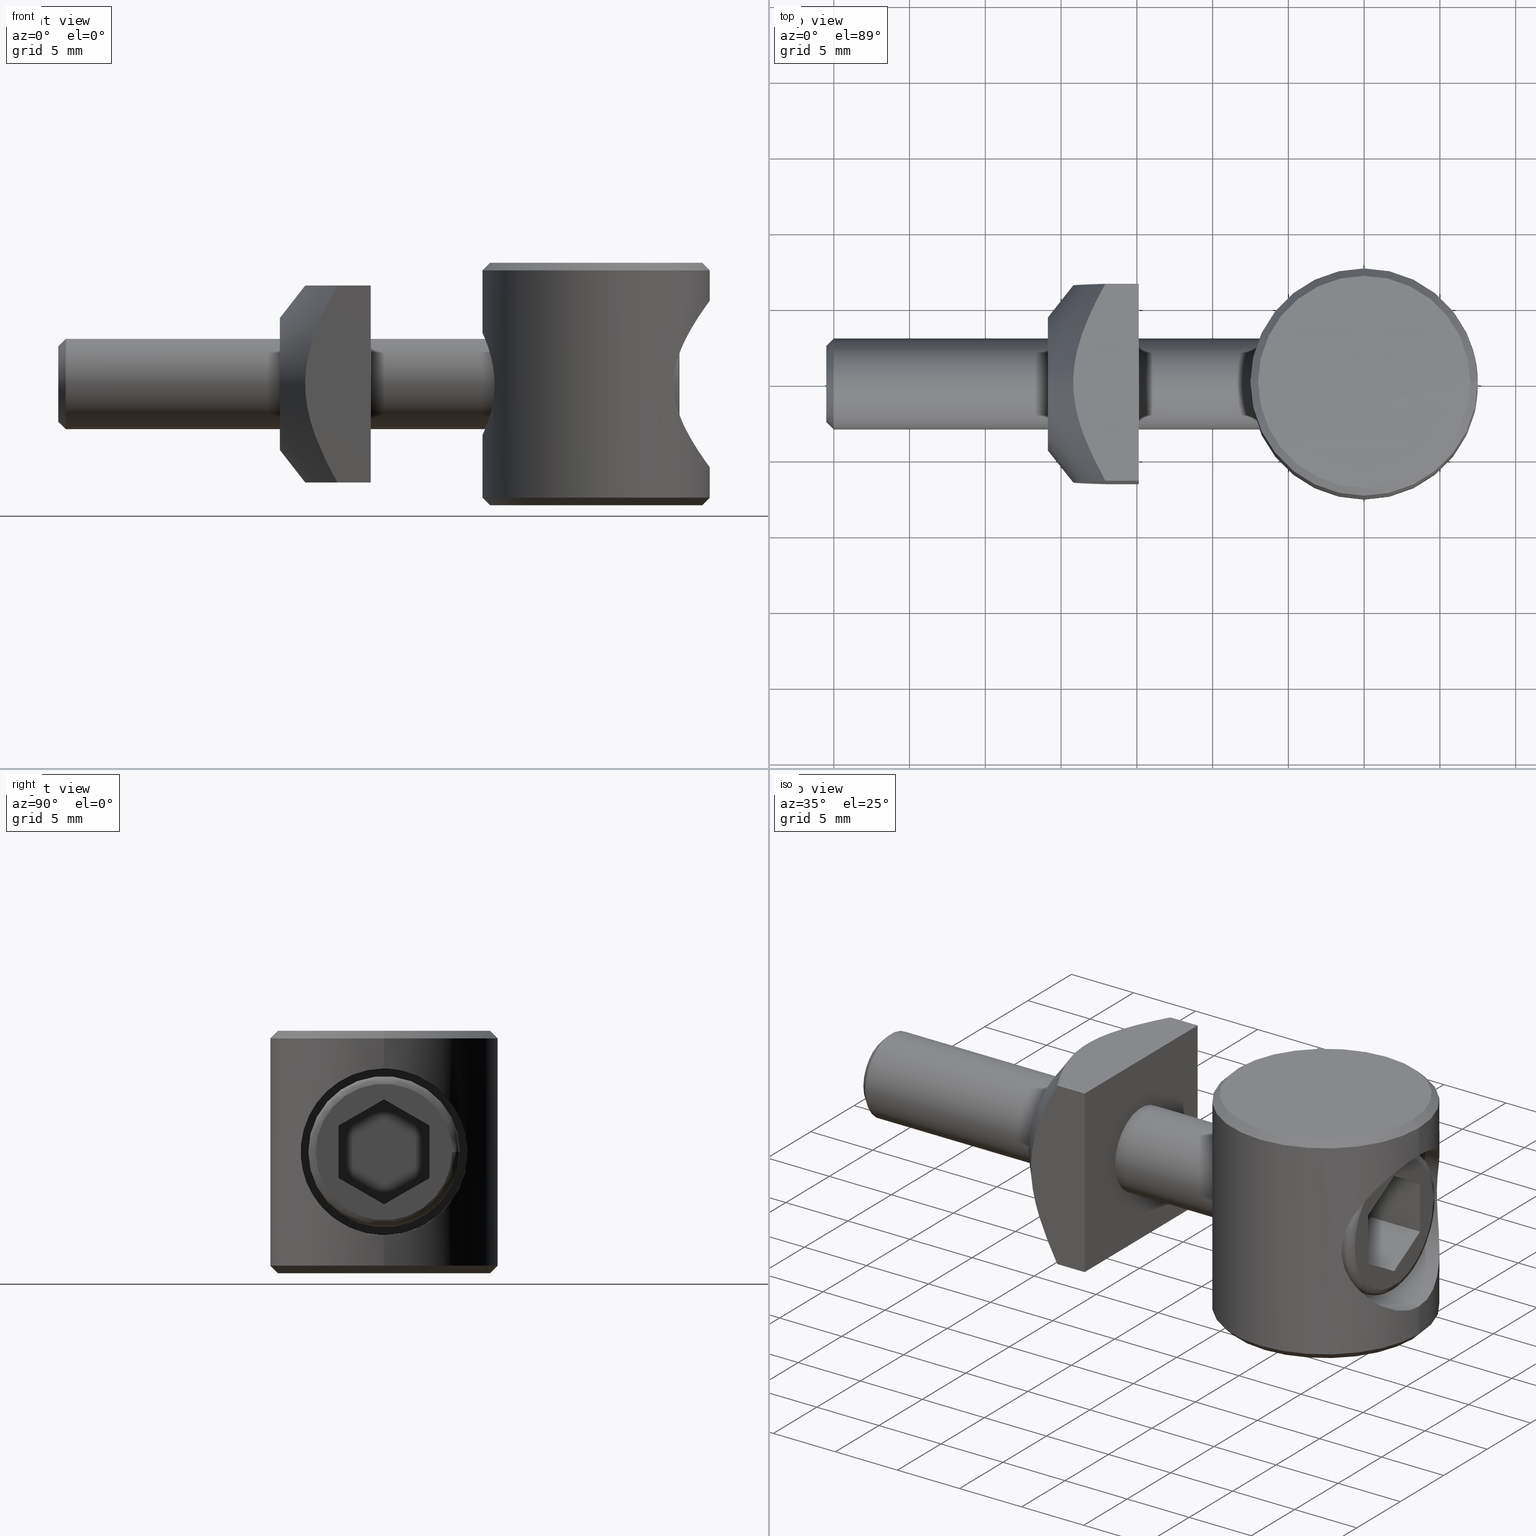
[diagram: canonical four-view strip — front | top / right | iso, engineering-drawing reading convention]
A machine part, canonical four-view strip (front | top / right | iso — engineering-drawing reading convention). The complete STEP part file that produces these views, byte-faithful:
ISO-10303-21;
HEADER;
/****************************************************************
 * Generated by software with PDE/Lib inside                    *
 * PDElib Version v4.4, created Mon 02/23/2004                  *
 * International Technegroup Inc. (www.iti-oh.com)              *
 ****************************************************************/
FILE_DESCRIPTION(('STEP AP203'),'2;1');
FILE_NAME('30.100.00.stp','2011-03-21T16:20:30',(''),(''),'2009.3.110','THINKDESIGN','');
FILE_SCHEMA(('CONFIG_CONTROL_DESIGN'));
ENDSEC;
DATA;
#2=CARTESIAN_POINT('',(6.999999999971806,0.0,0.0));
#3=CARTESIAN_POINT('',(6.999999999971353,-6.999999999971806,4.286264E-016));
#4=CARTESIAN_POINT('',(-4.537676E-013,-6.999999999971352,4.286264E-016));
#5=CARTESIAN_POINT('',(-6.999999999972260,-6.999999999970898,4.286264E-016));
#6=CARTESIAN_POINT('',(-6.999999999971806,9.075353E-013,0.0));
#7=CARTESIAN_POINT('',(-6.999999999971353,6.999999999972714,-4.286264E-016));
#8=CARTESIAN_POINT('',(4.537676E-013,6.999999999972260,-4.286264E-016));
#9=CARTESIAN_POINT('',(6.999999999972260,6.999999999971806,-4.286264E-016));
#10=CARTESIAN_POINT('',(6.999999999971806,0.0,0.0));
#11=CARTESIAN_POINT('',(7.499999999969987,3.061617E-017,0.499999999998181));
#12=CARTESIAN_POINT('',(7.499999999969533,-7.499999999969988,0.499999999998181));
#13=CARTESIAN_POINT('',(-4.537676E-013,-7.499999999969533,0.499999999998181));
#14=CARTESIAN_POINT('',(-7.499999999970441,-7.499999999969079,0.499999999998181));
#15=CARTESIAN_POINT('',(-7.499999999969987,9.075659E-013,0.499999999998181));
#16=CARTESIAN_POINT('',(-7.499999999969533,7.499999999970894,0.499999999998181));
#17=CARTESIAN_POINT('',(4.537676E-013,7.499999999970441,0.499999999998181));
#18=CARTESIAN_POINT('',(7.499999999970441,7.499999999969988,0.499999999998181));
#19=CARTESIAN_POINT('',(7.499999999969987,3.061617E-017,0.499999999998181));
#27=(BOUNDED_SURFACE()B_SPLINE_SURFACE(2,1,((#2,#11),(#3,#12),(#4,#13),(#5,#14),(#6,#15),(#7,#16),(#8,#17),(#9,#18),(#10,#19)),.UNSPECIFIED.,.T.,.F.,.U.)B_SPLINE_SURFACE_WITH_KNOTS((3,2,2,2,3),(2,2),(0.0,0.250000000000000,0.500000000000000,0.750000000000000,1.0),(0.0,0.707106781183975),.UNSPECIFIED.)GEOMETRIC_REPRESENTATION_ITEM()RATIONAL_B_SPLINE_SURFACE(((1.0,1.0),(0.707106781186548,0.707106781186548),(1.0,1.0),(0.707106781186548,0.707106781186548),(1.0,1.0),(0.707106781186548,0.707106781186548),(1.0,1.0),(0.707106781186548,0.707106781186548),(1.0,1.0)))REPRESENTATION_ITEM('')SURFACE());
#28=CARTESIAN_POINT('',(6.999999999971806,0.0,0.0));
#29=VERTEX_POINT('',#28);
#30=CARTESIAN_POINT('',(7.499999999969987,0.0,0.499999999998181));
#31=VERTEX_POINT('',#30);
#32=CARTESIAN_POINT('',(6.999999999971806,0.0,0.0));
#33=DIRECTION('',(0.707106781186548,4.329780E-017,0.707106781186548));
#34=VECTOR('',#33,0.707106781183975);
#35=LINE('',#32,#34);
#36=EDGE_CURVE('',#29,#31,#35,.T.);
#37=ORIENTED_EDGE('',*,*,#36,.T.);
#38=CARTESIAN_POINT('',(-7.499999999969987,0.0,0.499999999998181));
#39=VERTEX_POINT('',#38);
#40=CARTESIAN_POINT('',(0.0,0.0,0.499999999998181));
#41=DIRECTION('',(0.0,-6.123234E-017,-1.0));
#42=DIRECTION('',(1.0,0.0,0.0));
#43=AXIS2_PLACEMENT_3D('',#40,#41,#42);
#44=CIRCLE('',#43,7.499999999969987);
#45=EDGE_CURVE('',#31,#39,#44,.T.);
#46=ORIENTED_EDGE('',*,*,#45,.T.);
#47=CARTESIAN_POINT('',(0.0,0.0,0.499999999998181));
#48=DIRECTION('',(0.0,-6.123234E-017,-1.0));
#49=DIRECTION('',(1.0,0.0,0.0));
#50=AXIS2_PLACEMENT_3D('',#47,#48,#49);
#51=CIRCLE('',#50,7.499999999969987);
#52=EDGE_CURVE('',#39,#31,#51,.T.);
#53=ORIENTED_EDGE('',*,*,#52,.T.);
#54=ORIENTED_EDGE('',*,*,#36,.F.);
#55=CARTESIAN_POINT('',(-6.999999999971806,0.0,0.0));
#56=VERTEX_POINT('',#55);
#57=CARTESIAN_POINT('',(0.0,0.0,0.0));
#58=DIRECTION('',(0.0,-6.123234E-017,-1.0));
#59=DIRECTION('',(1.0,0.0,0.0));
#60=AXIS2_PLACEMENT_3D('',#57,#58,#59);
#61=CIRCLE('',#60,6.999999999971806);
#62=EDGE_CURVE('',#56,#29,#61,.T.);
#63=ORIENTED_EDGE('',*,*,#62,.F.);
#64=CARTESIAN_POINT('',(0.0,0.0,0.0));
#65=DIRECTION('',(0.0,-6.123234E-017,-1.0));
#66=DIRECTION('',(1.0,0.0,0.0));
#67=AXIS2_PLACEMENT_3D('',#64,#65,#66);
#68=CIRCLE('',#67,6.999999999971806);
#69=EDGE_CURVE('',#29,#56,#68,.T.);
#70=ORIENTED_EDGE('',*,*,#69,.F.);
#71=EDGE_LOOP('',(#37,#46,#53,#54,#63,#70));
#72=FACE_OUTER_BOUND('',#71,.T.);
#73=ADVANCED_FACE('',(#72),#27,.F.);
#74=CARTESIAN_POINT('',(0.0,0.0,0.499999999998181));
#75=DIRECTION('',(0.0,-6.123234E-017,-1.0));
#76=DIRECTION('',(1.0,0.0,0.0));
#77=AXIS2_PLACEMENT_3D('',#74,#75,#76);
#78=CYLINDRICAL_SURFACE('',#77,7.499999999969987);
#79=CARTESIAN_POINT('',(7.499999999969987,0.0,2.499999999990450));
#80=VERTEX_POINT('',#79);
#81=CARTESIAN_POINT('',(7.499999999969987,4.538289E-013,0.499999999998181));
#82=DIRECTION('',(0.0,0.0,1.0));
#83=VECTOR('',#82,1.999999999992269);
#84=LINE('',#81,#83);
#85=EDGE_CURVE('',#31,#80,#84,.T.);
#86=ORIENTED_EDGE('',*,*,#85,.T.);
#87=CARTESIAN_POINT('',(7.499999999969987,4.547474E-013,13.499999999945885));
#88=VERTEX_POINT('',#87);
#89=CARTESIAN_POINT('',(7.499999999969987,0.0,13.499999999945885));
#90=CARTESIAN_POINT('',(7.499999999969987,-0.187235908891580,13.499999999945885));
#91=CARTESIAN_POINT('',(7.482318753180607,-0.658062693658849,13.475907831847053));
#92=CARTESIAN_POINT('',(7.383592300483997,-1.401587189841393,13.340808267023021));
#93=CARTESIAN_POINT('',(7.184150381241580,-2.204382105711829,13.062681818257261));
#94=CARTESIAN_POINT('',(6.889814804196703,-3.004844032174333,12.638228145589437));
#95=CARTESIAN_POINT('',(6.503314138706173,-3.769166404371390,12.048509684587316));
#96=CARTESIAN_POINT('',(5.998734376666107,-4.532632487986575,11.193829623452075));
#97=CARTESIAN_POINT('',(5.504999607842365,-5.106869368244134,10.169439394810524));
#98=CARTESIAN_POINT('',(5.163247851778579,-5.441825369808157,9.014727429491359));
#99=CARTESIAN_POINT('',(5.061392866754886,-5.534225111557134,7.925359238446163));
#100=CARTESIAN_POINT('',(5.196070737490118,-5.411412632272004,6.825386722086023));
#101=CARTESIAN_POINT('',(5.559409688521555,-5.048788684413012,5.707295535908088));
#102=CARTESIAN_POINT('',(6.070100531007483,-4.437756150622590,4.673451869731707));
#103=CARTESIAN_POINT('',(6.645278585985579,-3.539782545652543,3.721383316711581));
#104=CARTESIAN_POINT('',(7.142909849373154,-2.417789766112037,2.992261969466199));
#105=CARTESIAN_POINT('',(7.441589650903552,-1.168517132548914,2.579340847030380));
#106=CARTESIAN_POINT('',(7.499999999969987,-0.353388568259561,2.499999999990450));
#107=CARTESIAN_POINT('',(7.499999999969987,0.0,2.499999999990450));
#108=B_SPLINE_CURVE_WITH_KNOTS('',3,(#89,#90,#91,#92,#93,#94,#95,#96,#97,#98,#99,#100,#101,#102,#103,#104,#105,#106,#107),.UNSPECIFIED.,.F.,.U.,(4,1,1,1,1,1,1,1,1,1,1,1,1,1,1,1,4),(0.0,0.562058006759199,1.411747737096331,2.276739218720677,3.169853864779821,4.260053581389174,5.383623289509268,6.913566546391490,8.052062323482849,9.105246721995343,10.175057685871481,11.364022147298819,12.768548674373111,14.065752031374407,15.632801490503576,17.011669284472173,18.074299974627817),.UNSPECIFIED.);
#109=EDGE_CURVE('',#88,#80,#108,.T.);
#110=ORIENTED_EDGE('',*,*,#109,.F.);
#111=CARTESIAN_POINT('',(7.499999999969987,4.547474E-013,15.499999999938154));
#112=VERTEX_POINT('',#111);
#113=CARTESIAN_POINT('',(7.499999999969987,4.546249E-013,13.499999999945885));
#114=DIRECTION('',(0.0,0.0,1.0));
#115=VECTOR('',#114,1.999999999992269);
#116=LINE('',#113,#115);
#117=EDGE_CURVE('',#88,#112,#116,.T.);
#118=ORIENTED_EDGE('',*,*,#117,.T.);
#119=CARTESIAN_POINT('',(-7.499999999969987,4.547474E-013,15.499999999938154));
#120=VERTEX_POINT('',#119);
#121=CARTESIAN_POINT('',(0.0,4.547474E-013,15.499999999938154));
#122=DIRECTION('',(0.0,-6.123234E-017,-1.0));
#123=DIRECTION('',(1.0,0.0,0.0));
#124=AXIS2_PLACEMENT_3D('',#121,#122,#123);
#125=CIRCLE('',#124,7.499999999969987);
#126=EDGE_CURVE('',#112,#120,#125,.T.);
#127=ORIENTED_EDGE('',*,*,#126,.T.);
#128=CARTESIAN_POINT('',(0.0,4.547474E-013,15.499999999938154));
#129=DIRECTION('',(0.0,-6.123234E-017,-1.0));
#130=DIRECTION('',(1.0,0.0,0.0));
#131=AXIS2_PLACEMENT_3D('',#128,#129,#130);
#132=CIRCLE('',#131,7.499999999969987);
#133=EDGE_CURVE('',#120,#112,#132,.T.);
#134=ORIENTED_EDGE('',*,*,#133,.T.);
#135=ORIENTED_EDGE('',*,*,#117,.F.);
#136=CARTESIAN_POINT('',(7.499999999969987,4.547474E-013,2.499999999990450));
#137=CARTESIAN_POINT('',(7.499999999969987,0.353388568260470,2.499999999990450));
#138=CARTESIAN_POINT('',(7.441589650902188,1.168517132550278,2.579340847031290));
#139=CARTESIAN_POINT('',(7.142909849373609,2.417789766114311,2.992261969467108));
#140=CARTESIAN_POINT('',(6.645278585986489,3.539782545653452,3.721383316712945));
#141=CARTESIAN_POINT('',(6.070100531007483,4.437756150623500,4.673451869731707));
#142=CARTESIAN_POINT('',(5.559409688520645,5.048788684413921,5.707295535907633));
#143=CARTESIAN_POINT('',(5.196070737491027,5.411412632272459,6.825386722086932));
#144=CARTESIAN_POINT('',(5.061392866754432,5.534225111557589,7.925359238446617));
#145=CARTESIAN_POINT('',(5.163247851778579,5.441825369808157,9.014727429492723));
#146=CARTESIAN_POINT('',(5.504999607842365,5.106869368244134,10.169439394809160));
#147=CARTESIAN_POINT('',(5.998734376666107,4.532632487987485,11.193829623451620));
#148=CARTESIAN_POINT('',(6.503314138705719,3.769166404371390,12.048509684585497));
#149=CARTESIAN_POINT('',(6.889814804196249,3.004844032174788,12.638228145589437));
#150=CARTESIAN_POINT('',(7.184150381242034,2.204382105712284,13.062681818256806));
#151=CARTESIAN_POINT('',(7.383592300482633,1.401587189841848,13.340808267020748));
#152=CARTESIAN_POINT('',(7.482318753180152,0.658062693659303,13.475907831846598));
#153=CARTESIAN_POINT('',(7.499999999969987,0.187235908892035,13.499999999945885));
#154=CARTESIAN_POINT('',(7.499999999969987,4.547474E-013,13.499999999945885));
#155=B_SPLINE_CURVE_WITH_KNOTS('',3,(#136,#137,#138,#139,#140,#141,#142,#143,#144,#145,#146,#147,#148,#149,#150,#151,#152,#153,#154),.UNSPECIFIED.,.F.,.U.,(4,1,1,1,1,1,1,1,1,1,1,1,1,1,1,1,4),(0.0,1.062630690157268,2.441498484126401,4.008547943254942,5.305751300252759,6.710277827330080,7.899242288757689,8.969053252632898,10.022237651144387,11.160733428236464,12.690676685118545,13.814246393238646,14.904446109847905,15.797560755907053,16.662552237531397,17.512241967868533,18.074299974627731),.UNSPECIFIED.);
#156=EDGE_CURVE('',#80,#88,#155,.T.);
#157=ORIENTED_EDGE('',*,*,#156,.F.);
#158=ORIENTED_EDGE('',*,*,#85,.F.);
#159=ORIENTED_EDGE('',*,*,#52,.F.);
#160=ORIENTED_EDGE('',*,*,#45,.F.);
#161=EDGE_LOOP('',(#86,#110,#118,#127,#134,#135,#157,#158,#159,#160));
#162=FACE_OUTER_BOUND('',#161,.T.);
#163=CARTESIAN_POINT('',(-7.500004034824312,-0.000009830409620,11.375004232024919));
#164=VERTEX_POINT('',#163);
#165=CARTESIAN_POINT('',(-7.499999999969987,0.0,4.624999999981810));
#166=VERTEX_POINT('',#165);
#167=CARTESIAN_POINT('',(-7.500004034824312,-0.000009830409620,11.375004232024919));
#168=CARTESIAN_POINT('',(-7.499996954178084,0.182922617668260,11.374997728981587));
#169=CARTESIAN_POINT('',(-7.483974439159502,0.617732914771559,11.339534224241930));
#170=CARTESIAN_POINT('',(-7.397287023552508,1.312304319171290,11.143773990371756));
#171=CARTESIAN_POINT('',(-7.246232150248034,1.967680013087829,10.775896413706960));
#172=CARTESIAN_POINT('',(-7.059955079850624,2.550914364645450,10.252534419774747));
#173=CARTESIAN_POINT('',(-6.894683089756654,2.959591070215993,9.677083388149185));
#174=CARTESIAN_POINT('',(-6.754124821874939,3.263913988072545,8.959617985196474));
#175=CARTESIAN_POINT('',(-6.682375778411824,3.404908591972344,8.199586775118860));
#176=CARTESIAN_POINT('',(-6.710465094853589,3.350660313681601,7.411477005658981));
#177=CARTESIAN_POINT('',(-6.817499315563964,3.130782303382603,6.666454159739715));
#178=CARTESIAN_POINT('',(-6.984915770263342,2.749049898211069,5.982206497675634));
#179=CARTESIAN_POINT('',(-7.165276072321376,2.239484215650009,5.443482752513319));
#180=CARTESIAN_POINT('',(-7.341004373359738,1.587018722308585,4.987116675941252));
#181=CARTESIAN_POINT('',(-7.468323876882550,0.861311250045674,4.694798965915652));
#182=CARTESIAN_POINT('',(-7.499999999969987,0.258212718835694,4.624999999981810));
#183=CARTESIAN_POINT('',(-7.499999999969987,0.0,4.624999999981810));
#184=B_SPLINE_CURVE_WITH_KNOTS('',3,(#167,#168,#169,#170,#171,#172,#173,#174,#175,#176,#177,#178,#179,#180,#181,#182,#183),.UNSPECIFIED.,.F.,.U.,(4,1,1,1,1,1,1,1,1,1,1,1,1,1,4),(10.750887607616978,11.299702742959315,12.055199760812989,12.915942652718872,13.581101343585223,14.461235249042391,15.073666456791329,15.946740671227875,16.766791629261977,17.423042190743306,18.286433819751505,19.151540690839255,19.695860525094588,20.725134766499117,21.501775215233955),.UNSPECIFIED.);
#185=EDGE_CURVE('',#164,#166,#184,.T.);
#186=ORIENTED_EDGE('',*,*,#185,.F.);
#187=CARTESIAN_POINT('',(-7.499999999969987,0.0,4.624999999981810));
#188=CARTESIAN_POINT('',(-7.499999999969987,-0.191441366937852,4.624999999981810));
#189=CARTESIAN_POINT('',(-7.482803262329981,-0.636614330367138,4.663038677968416));
#190=CARTESIAN_POINT('',(-7.398041153126087,-1.295560530432795,4.854734312496476));
#191=CARTESIAN_POINT('',(-7.247595695749624,-1.966267858605079,5.221380110364407));
#192=CARTESIAN_POINT('',(-7.060760735828808,-2.550575625800775,5.740369681458560));
#193=CARTESIAN_POINT('',(-6.883633086062673,-2.985152609438046,6.368759925857830));
#194=CARTESIAN_POINT('',(-6.749347175757066,-3.273230221682752,7.073896885804516));
#195=CARTESIAN_POINT('',(-6.684460526063049,-3.400904615686159,7.815003195248664));
#196=CARTESIAN_POINT('',(-6.709157930019956,-3.353032118607189,8.562746192392751));
#197=CARTESIAN_POINT('',(-6.804449308249332,-3.158148884731872,9.255887208667900));
#198=CARTESIAN_POINT('',(-6.953250770222439,-2.823277604710711,9.900908838696978));
#199=CARTESIAN_POINT('',(-7.124471659443771,-2.364244219045304,10.442082346459301));
#200=CARTESIAN_POINT('',(-7.303036751742184,-1.750897082495158,10.920041423029488));
#201=CARTESIAN_POINT('',(-7.448984985723655,-1.013420323685750,11.262497396940034));
#202=CARTESIAN_POINT('',(-7.497509413026310,-0.368384364777568,11.369460870009346));
#203=CARTESIAN_POINT('',(-7.500005494013519,-0.037708798148709,11.375005572180935));
#204=CARTESIAN_POINT('',(-7.500004034824312,-0.000009830409620,11.375004232024919));
#205=B_SPLINE_CURVE_WITH_KNOTS('',3,(#187,#188,#189,#190,#191,#192,#193,#194,#195,#196,#197,#198,#199,#200,#201,#202,#203,#204),.UNSPECIFIED.,.F.,.U.,(4,1,1,1,1,1,1,1,1,1,1,1,1,1,1,4),(0.0,0.575144356157960,1.334137133689136,2.060392775512152,2.898695223727640,3.728164465776419,4.396973427001568,5.207158237659382,5.972825102623094,6.627788808917825,7.374321062611234,8.185013026194950,8.803647780547465,9.758803507197458,10.637787037983829,10.750887607616978),.UNSPECIFIED.);
#206=EDGE_CURVE('',#166,#164,#205,.T.);
#207=ORIENTED_EDGE('',*,*,#206,.F.);
#208=EDGE_LOOP('',(#186,#207));
#209=FACE_BOUND('',#208,.T.);
#210=ADVANCED_FACE('',(#162,#209),#78,.T.);
#211=CARTESIAN_POINT('',(7.499999999969987,4.547167E-013,15.499999999938154));
#212=CARTESIAN_POINT('',(7.499999999969988,-7.499999999969533,15.499999999938154));
#213=CARTESIAN_POINT('',(-1.667701E-029,-7.499999999969532,15.499999999938154));
#214=CARTESIAN_POINT('',(-7.499999999969988,-7.499999999969533,15.499999999938154));
#215=CARTESIAN_POINT('',(-7.499999999969987,4.547167E-013,15.499999999938154));
#216=CARTESIAN_POINT('',(-7.499999999969988,7.499999999970441,15.499999999938154));
#217=CARTESIAN_POINT('',(1.667701E-029,7.499999999970441,15.499999999938154));
#218=CARTESIAN_POINT('',(7.499999999969988,7.499999999970441,15.499999999938154));
#219=CARTESIAN_POINT('',(7.499999999969987,4.547167E-013,15.499999999938154));
#220=CARTESIAN_POINT('',(6.999999999971806,4.547474E-013,15.999999999936335));
#221=CARTESIAN_POINT('',(6.999999999971806,-6.999999999971351,15.999999999936335));
#222=CARTESIAN_POINT('',(0.0,-6.999999999971351,15.999999999936335));
#223=CARTESIAN_POINT('',(-6.999999999971806,-6.999999999971351,15.999999999936335));
#224=CARTESIAN_POINT('',(-6.999999999971806,4.547474E-013,15.999999999936335));
#225=CARTESIAN_POINT('',(-6.999999999971806,6.999999999972260,15.999999999936335));
#226=CARTESIAN_POINT('',(0.0,6.999999999972260,15.999999999936335));
#227=CARTESIAN_POINT('',(6.999999999971806,6.999999999972260,15.999999999936335));
#228=CARTESIAN_POINT('',(6.999999999971806,4.547474E-013,15.999999999936335));
#236=(BOUNDED_SURFACE()B_SPLINE_SURFACE(2,1,((#211,#220),(#212,#221),(#213,#222),(#214,#223),(#215,#224),(#216,#225),(#217,#226),(#218,#227),(#219,#228)),.UNSPECIFIED.,.T.,.F.,.U.)B_SPLINE_SURFACE_WITH_KNOTS((3,2,2,2,3),(2,2),(0.0,0.250000000000000,0.500000000000000,0.750000000000000,1.0),(-0.707106781183975,0.0),.UNSPECIFIED.)GEOMETRIC_REPRESENTATION_ITEM()RATIONAL_B_SPLINE_SURFACE(((1.0,1.0),(0.707106781186548,0.707106781186548),(1.0,1.0),(0.707106781186548,0.707106781186548),(1.0,1.0),(0.707106781186548,0.707106781186548),(1.0,1.0),(0.707106781186548,0.707106781186548),(1.0,1.0)))REPRESENTATION_ITEM('')SURFACE());
#237=CARTESIAN_POINT('',(6.999999999971806,4.547474E-013,15.999999999936335));
#238=VERTEX_POINT('',#237);
#239=CARTESIAN_POINT('',(7.499999999969987,4.547167E-013,15.499999999938154));
#240=DIRECTION('',(-0.707106781186548,4.329780E-017,0.707106781186548));
#241=VECTOR('',#240,0.707106781183975);
#242=LINE('',#239,#241);
#243=EDGE_CURVE('',#112,#238,#242,.T.);
#244=ORIENTED_EDGE('',*,*,#243,.T.);
#245=CARTESIAN_POINT('',(-6.999999999971806,4.547474E-013,15.999999999936335));
#246=VERTEX_POINT('',#245);
#247=CARTESIAN_POINT('',(0.0,4.547474E-013,15.999999999936335));
#248=DIRECTION('',(0.0,-6.123234E-017,-1.0));
#249=DIRECTION('',(1.0,0.0,0.0));
#250=AXIS2_PLACEMENT_3D('',#247,#248,#249);
#251=CIRCLE('',#250,6.999999999971806);
#252=EDGE_CURVE('',#238,#246,#251,.T.);
#253=ORIENTED_EDGE('',*,*,#252,.T.);
#254=CARTESIAN_POINT('',(0.0,4.547474E-013,15.999999999936335));
#255=DIRECTION('',(0.0,-6.123234E-017,-1.0));
#256=DIRECTION('',(1.0,0.0,0.0));
#257=AXIS2_PLACEMENT_3D('',#254,#255,#256);
#258=CIRCLE('',#257,6.999999999971806);
#259=EDGE_CURVE('',#246,#238,#258,.T.);
#260=ORIENTED_EDGE('',*,*,#259,.T.);
#261=ORIENTED_EDGE('',*,*,#243,.F.);
#262=ORIENTED_EDGE('',*,*,#133,.F.);
#263=ORIENTED_EDGE('',*,*,#126,.F.);
#264=EDGE_LOOP('',(#244,#253,#260,#261,#262,#263));
#265=FACE_OUTER_BOUND('',#264,.T.);
#266=ADVANCED_FACE('',(#265),#236,.F.);
#267=CARTESIAN_POINT('',(13.999999999943611,13.999999999943611,15.999999999936335));
#268=DIRECTION('',(0.0,0.0,-1.0));
#269=DIRECTION('',(0.0,-1.0,0.0));
#270=AXIS2_PLACEMENT_3D('',#267,#268,#269);
#271=PLANE('',#270);
#272=ORIENTED_EDGE('',*,*,#259,.F.);
#273=ORIENTED_EDGE('',*,*,#252,.F.);
#274=EDGE_LOOP('',(#272,#273));
#275=FACE_OUTER_BOUND('',#274,.T.);
#276=ADVANCED_FACE('',(#275),#271,.F.);
#277=CARTESIAN_POINT('',(-13.999999999943611,13.999999999943611,4.547474E-013));
#278=DIRECTION('',(0.0,0.0,1.0));
#279=DIRECTION('',(0.0,-1.0,0.0));
#280=AXIS2_PLACEMENT_3D('',#277,#278,#279);
#281=PLANE('',#280);
#282=ORIENTED_EDGE('',*,*,#69,.T.);
#283=ORIENTED_EDGE('',*,*,#62,.T.);
#284=EDGE_LOOP('',(#282,#283));
#285=FACE_OUTER_BOUND('',#284,.T.);
#286=ADVANCED_FACE('',(#285),#281,.F.);
#287=CARTESIAN_POINT('',(-13.499999999998181,0.0,7.999999999968168));
#288=DIRECTION('',(-1.0,0.0,0.0));
#289=DIRECTION('',(0.0,-6.123234E-017,-1.0));
#290=AXIS2_PLACEMENT_3D('',#287,#288,#289);
#291=CYLINDRICAL_SURFACE('',#290,3.374999999986358);
#292=CARTESIAN_POINT('',(-0.499999999998181,2.066591E-016,11.374999999954525));
#293=VERTEX_POINT('',#292);
#294=CARTESIAN_POINT('',(-0.499999999998181,0.0,4.624999999981810));
#295=VERTEX_POINT('',#294);
#296=CARTESIAN_POINT('',(-0.499999999998181,0.0,7.999999999968168));
#297=DIRECTION('',(-1.0,0.0,0.0));
#298=DIRECTION('',(0.0,-6.123234E-017,-1.0));
#299=AXIS2_PLACEMENT_3D('',#296,#297,#298);
#300=CIRCLE('',#299,3.374999999986358);
#301=EDGE_CURVE('',#293,#295,#300,.T.);
#302=ORIENTED_EDGE('',*,*,#301,.F.);
#303=CARTESIAN_POINT('',(-0.499999999998181,0.0,7.999999999968168));
#304=DIRECTION('',(-1.0,0.0,0.0));
#305=DIRECTION('',(0.0,-6.123234E-017,-1.0));
#306=AXIS2_PLACEMENT_3D('',#303,#304,#305);
#307=CIRCLE('',#306,3.374999999986358);
#308=EDGE_CURVE('',#295,#293,#307,.T.);
#309=ORIENTED_EDGE('',*,*,#308,.F.);
#310=CARTESIAN_POINT('',(-7.499999999969987,0.0,4.624999999981810));
#311=DIRECTION('',(1.0,0.0,0.0));
#312=VECTOR('',#311,6.999999999971806);
#313=LINE('',#310,#312);
#314=EDGE_CURVE('',#166,#295,#313,.T.);
#315=ORIENTED_EDGE('',*,*,#314,.F.);
#316=ORIENTED_EDGE('',*,*,#206,.T.);
#317=ORIENTED_EDGE('',*,*,#185,.T.);
#318=ORIENTED_EDGE('',*,*,#314,.T.);
#319=EDGE_LOOP('',(#302,#309,#315,#316,#317,#318));
#320=FACE_OUTER_BOUND('',#319,.T.);
#321=ADVANCED_FACE('',(#320),#291,.F.);
#322=CARTESIAN_POINT('',(-0.499999999998181,10.999999999955435,18.999999999923602));
#323=DIRECTION('',(1.0,0.0,0.0));
#324=DIRECTION('',(0.0,-1.0,0.0));
#325=AXIS2_PLACEMENT_3D('',#322,#323,#324);
#326=PLANE('',#325);
#327=CARTESIAN_POINT('',(-0.499999999998181,3.367779E-016,13.499999999945885));
#328=VERTEX_POINT('',#327);
#329=CARTESIAN_POINT('',(-0.499999999998181,0.0,2.499999999990450));
#330=VERTEX_POINT('',#329);
#331=CARTESIAN_POINT('',(-0.499999999998181,0.0,7.999999999968168));
#332=DIRECTION('',(-1.0,0.0,0.0));
#333=DIRECTION('',(0.0,-6.123234E-017,-1.0));
#334=AXIS2_PLACEMENT_3D('',#331,#332,#333);
#335=CIRCLE('',#334,5.499999999977717);
#336=EDGE_CURVE('',#328,#330,#335,.T.);
#337=ORIENTED_EDGE('',*,*,#336,.F.);
#338=CARTESIAN_POINT('',(-0.499999999998181,0.0,7.999999999968168));
#339=DIRECTION('',(-1.0,0.0,0.0));
#340=DIRECTION('',(0.0,-6.123234E-017,-1.0));
#341=AXIS2_PLACEMENT_3D('',#338,#339,#340);
#342=CIRCLE('',#341,5.499999999977717);
#343=EDGE_CURVE('',#330,#328,#342,.T.);
#344=ORIENTED_EDGE('',*,*,#343,.F.);
#345=EDGE_LOOP('',(#337,#344));
#346=FACE_OUTER_BOUND('',#345,.T.);
#347=ORIENTED_EDGE('',*,*,#308,.T.);
#348=ORIENTED_EDGE('',*,*,#301,.T.);
#349=EDGE_LOOP('',(#347,#348));
#350=FACE_BOUND('',#349,.T.);
#351=ADVANCED_FACE('',(#346,#350),#326,.T.);
#352=CARTESIAN_POINT('',(-0.499999999998181,0.0,7.999999999968168));
#353=DIRECTION('',(-1.0,0.0,0.0));
#354=DIRECTION('',(0.0,-6.123234E-017,-1.0));
#355=AXIS2_PLACEMENT_3D('',#352,#353,#354);
#356=CYLINDRICAL_SURFACE('',#355,5.499999999977717);
#357=ORIENTED_EDGE('',*,*,#343,.T.);
#358=ORIENTED_EDGE('',*,*,#336,.T.);
#359=CARTESIAN_POINT('',(-0.499999999998181,0.0,2.499999999990450));
#360=DIRECTION('',(1.0,0.0,0.0));
#361=VECTOR('',#360,7.999999999968168);
#362=LINE('',#359,#361);
#363=EDGE_CURVE('',#330,#80,#362,.T.);
#364=ORIENTED_EDGE('',*,*,#363,.T.);
#365=ORIENTED_EDGE('',*,*,#156,.T.);
#366=ORIENTED_EDGE('',*,*,#109,.T.);
#367=ORIENTED_EDGE('',*,*,#363,.F.);
#368=EDGE_LOOP('',(#357,#358,#364,#365,#366,#367));
#369=FACE_OUTER_BOUND('',#368,.T.);
#370=ADVANCED_FACE('',(#369),#356,.F.);
#371=CLOSED_SHELL('',(#73,#210,#266,#276,#286,#321,#351,#370));
#372=MANIFOLD_SOLID_BREP('',#371);
#373=CARTESIAN_POINT('',(-14.875668999940444,6.499999999974534,1.499999999968168));
#374=DIRECTION('',(0.0,1.0,0.0));
#375=DIRECTION('',(-1.0,0.0,0.0));
#376=AXIS2_PLACEMENT_3D('',#373,#374,#375);
#377=PLANE('',#376);
#378=CARTESIAN_POINT('',(-14.875668999940444,6.499999999974534,1.499999999968168));
#379=VERTEX_POINT('',#378);
#380=CARTESIAN_POINT('',(-17.077402334751696,6.499999999974534,1.499999999968168));
#381=VERTEX_POINT('',#380);
#382=CARTESIAN_POINT('',(-14.875668999940444,6.499999999974534,1.499999999968168));
#383=DIRECTION('',(-1.0,0.0,0.0));
#384=VECTOR('',#383,2.201733334811106);
#385=LINE('',#382,#384);
#386=EDGE_CURVE('',#379,#381,#385,.T.);
#387=ORIENTED_EDGE('',*,*,#386,.T.);
#388=CARTESIAN_POINT('',(-19.203302036236892,6.499999999974534,7.999999999968168));
#389=VERTEX_POINT('',#388);
#390=CARTESIAN_POINT('',(-17.077402334751696,6.499999999974534,1.499999999968372));
#391=CARTESIAN_POINT('',(-17.405226071415200,6.499999999974534,2.087151661818551));
#392=CARTESIAN_POINT('',(-17.915525128714762,6.499999999986358,3.064059744593738));
#393=CARTESIAN_POINT('',(-18.584747106645864,6.499999999945885,4.633463832977292));
#394=CARTESIAN_POINT('',(-18.983320113980426,6.500000000100954,5.927625889341636));
#395=CARTESIAN_POINT('',(-19.172257462857942,6.499999999750799,7.118299904161511));
#396=CARTESIAN_POINT('',(-19.203302036236892,6.499999999974534,7.717965702160571));
#397=CARTESIAN_POINT('',(-19.203302036236892,6.499999999974534,7.999999999968167));
#398=B_SPLINE_CURVE_WITH_KNOTS('',3,(#390,#391,#392,#393,#394,#395,#396,#397),.UNSPECIFIED.,.F.,.U.,(4,1,1,1,1,4),(0.0,2.017883608308912,3.303099161466276,5.115860811620169,6.067965354631358,6.914426426632446),.UNSPECIFIED.);
#399=EDGE_CURVE('',#381,#389,#398,.T.);
#400=ORIENTED_EDGE('',*,*,#399,.T.);
#401=CARTESIAN_POINT('',(-17.077402334751696,6.499999999974534,14.499999999968168));
#402=VERTEX_POINT('',#401);
#403=CARTESIAN_POINT('',(-19.203302036236892,6.499999999974534,7.999999999968168));
#404=CARTESIAN_POINT('',(-19.203302036236892,6.499999999974534,8.282034297775764));
#405=CARTESIAN_POINT('',(-19.172257462857488,6.499999999751708,8.881700095774825));
#406=CARTESIAN_POINT('',(-18.983320113980426,6.500000000102318,10.072374110594698));
#407=CARTESIAN_POINT('',(-18.584747106646773,6.499999999945430,11.366536166959040));
#408=CARTESIAN_POINT('',(-17.915525128714307,6.499999999986358,12.935940255342594));
#409=CARTESIAN_POINT('',(-17.405226071415200,6.499999999974534,13.912848338117783));
#410=CARTESIAN_POINT('',(-17.077402334751696,6.499999999974534,14.499999999967962));
#411=B_SPLINE_CURVE_WITH_KNOTS('',3,(#403,#404,#405,#406,#407,#408,#409,#410),.UNSPECIFIED.,.F.,.U.,(4,1,1,1,1,4),(0.0,0.846461072001089,1.798565615012273,3.611327265166168,4.896542818323531,6.914426426632445),.UNSPECIFIED.);
#412=EDGE_CURVE('',#389,#402,#411,.T.);
#413=ORIENTED_EDGE('',*,*,#412,.T.);
#414=CARTESIAN_POINT('',(-14.875668999940444,6.499999999974534,14.499999999968168));
#415=VERTEX_POINT('',#414);
#416=CARTESIAN_POINT('',(-14.875668999940444,6.499999999974534,14.499999999968168));
#417=DIRECTION('',(-1.0,0.0,0.0));
#418=VECTOR('',#417,2.201733334811106);
#419=LINE('',#416,#418);
#420=EDGE_CURVE('',#415,#402,#419,.T.);
#421=ORIENTED_EDGE('',*,*,#420,.F.);
#422=CARTESIAN_POINT('',(-14.875668999940444,6.499999999974534,1.499999999968168));
#423=DIRECTION('',(0.0,0.0,1.0));
#424=VECTOR('',#423,13.0);
#425=LINE('',#422,#424);
#426=EDGE_CURVE('',#379,#415,#425,.T.);
#427=ORIENTED_EDGE('',*,*,#426,.F.);
#428=EDGE_LOOP('',(#387,#400,#413,#421,#427));
#429=FACE_OUTER_BOUND('',#428,.T.);
#430=ADVANCED_FACE('',(#429),#377,.T.);
#431=CARTESIAN_POINT('',(-20.875668999940444,6.499999999974534,1.499999999968168));
#432=DIRECTION('',(-1.0,0.0,0.0));
#433=DIRECTION('',(0.0,-1.0,0.0));
#434=AXIS2_PLACEMENT_3D('',#431,#432,#433);
#435=PLANE('',#434);
#436=CARTESIAN_POINT('',(-20.875668999940444,4.381997442532793,7.999999999968168));
#437=VERTEX_POINT('',#436);
#438=CARTESIAN_POINT('',(-20.875668999940444,-4.381997442531883,7.999999999968168));
#439=VERTEX_POINT('',#438);
#440=CARTESIAN_POINT('',(-20.875668999940444,4.547474E-013,7.999999999968168));
#441=DIRECTION('',(-1.0,0.0,0.0));
#442=DIRECTION('',(0.0,1.0,0.0));
#443=AXIS2_PLACEMENT_3D('',#440,#441,#442);
#444=CIRCLE('',#443,4.381997442532338);
#445=EDGE_CURVE('',#437,#439,#444,.T.);
#446=ORIENTED_EDGE('',*,*,#445,.T.);
#447=CARTESIAN_POINT('',(-20.875668999940444,4.547474E-013,7.999999999968168));
#448=DIRECTION('',(-1.0,0.0,0.0));
#449=DIRECTION('',(0.0,1.0,0.0));
#450=AXIS2_PLACEMENT_3D('',#447,#448,#449);
#451=CIRCLE('',#450,4.381997442532338);
#452=EDGE_CURVE('',#439,#437,#451,.T.);
#453=ORIENTED_EDGE('',*,*,#452,.T.);
#454=EDGE_LOOP('',(#446,#453));
#455=FACE_OUTER_BOUND('',#454,.T.);
#456=CARTESIAN_POINT('',(-20.875668999940444,2.500000000000455,7.999999999968168));
#457=VERTEX_POINT('',#456);
#458=CARTESIAN_POINT('',(-20.875668999940444,-2.499999999999545,7.999999999968168));
#459=VERTEX_POINT('',#458);
#460=CARTESIAN_POINT('',(-20.875668999940444,4.547474E-013,7.999999999968168));
#461=DIRECTION('',(-1.0,-1.377462E-048,6.123234E-017));
#462=DIRECTION('',(0.0,-1.0,-2.249565E-032));
#463=AXIS2_PLACEMENT_3D('',#460,#461,#462);
#464=CIRCLE('',#463,2.500000000000000);
#465=EDGE_CURVE('',#457,#459,#464,.T.);
#466=ORIENTED_EDGE('',*,*,#465,.F.);
#467=CARTESIAN_POINT('',(-20.875668999940444,4.547474E-013,7.999999999968168));
#468=DIRECTION('',(-1.0,-1.377462E-048,6.123234E-017));
#469=DIRECTION('',(0.0,-1.0,-2.249565E-032));
#470=AXIS2_PLACEMENT_3D('',#467,#468,#469);
#471=CIRCLE('',#470,2.500000000000000);
#472=EDGE_CURVE('',#459,#457,#471,.T.);
#473=ORIENTED_EDGE('',*,*,#472,.F.);
#474=EDGE_LOOP('',(#466,#473));
#475=FACE_BOUND('',#474,.T.);
#476=ADVANCED_FACE('',(#455,#475),#435,.T.);
#477=CARTESIAN_POINT('',(-20.875668999940444,-6.500000000025466,1.499999999968168));
#478=DIRECTION('',(0.0,-1.0,0.0));
#479=DIRECTION('',(1.0,0.0,0.0));
#480=AXIS2_PLACEMENT_3D('',#477,#478,#479);
#481=PLANE('',#480);
#482=CARTESIAN_POINT('',(-14.875668999940444,-6.500000000025466,1.499999999968168));
#483=VERTEX_POINT('',#482);
#484=CARTESIAN_POINT('',(-14.875668999940444,-6.500000000025466,14.499999999968168));
#485=VERTEX_POINT('',#484);
#486=CARTESIAN_POINT('',(-14.875668999940444,-6.500000000025466,1.499999999968168));
#487=DIRECTION('',(0.0,0.0,1.0));
#488=VECTOR('',#487,13.0);
#489=LINE('',#486,#488);
#490=EDGE_CURVE('',#483,#485,#489,.T.);
#491=ORIENTED_EDGE('',*,*,#490,.T.);
#492=CARTESIAN_POINT('',(-17.077402334721683,-6.500000000025466,14.499999999968168));
#493=VERTEX_POINT('',#492);
#494=CARTESIAN_POINT('',(-17.077402334721747,-6.500000000025466,14.499999999968168));
#495=DIRECTION('',(1.0,0.0,0.0));
#496=VECTOR('',#495,2.201733334781302);
#497=LINE('',#494,#496);
#498=EDGE_CURVE('',#493,#485,#497,.T.);
#499=ORIENTED_EDGE('',*,*,#498,.F.);
#500=CARTESIAN_POINT('',(-17.077402334722137,-6.500000000025466,1.499999999968168));
#501=VERTEX_POINT('',#500);
#502=CARTESIAN_POINT('',(-17.077402334721683,-6.500000000025466,14.499999999968345));
#503=CARTESIAN_POINT('',(-17.361071812684713,-6.500000000025466,13.991931221611894));
#504=CARTESIAN_POINT('',(-17.878280429378719,-6.500000000045930,13.010040436261805));
#505=CARTESIAN_POINT('',(-18.501088511795842,-6.499999999962711,11.582750773671997));
#506=CARTESIAN_POINT('',(-18.908589182601645,-6.500000000205546,10.322646331027162));
#507=CARTESIAN_POINT('',(-19.148509006171935,-6.499999999467491,9.145690457114101));
#508=CARTESIAN_POINT('',(-19.233974048756409,-6.500000000187356,7.983131358670931));
#509=CARTESIAN_POINT('',(-19.143427671626796,-6.499999999984539,6.811733610959545));
#510=CARTESIAN_POINT('',(-18.894680539828187,-6.500000000040018,5.625725288513960));
#511=CARTESIAN_POINT('',(-18.482114712325711,-6.500000000010914,4.370173597350005));
#512=CARTESIAN_POINT('',(-17.865197200558669,-6.500000000071850,2.964690915684981));
#513=CARTESIAN_POINT('',(-17.355954229572944,-6.500000000025466,1.998902884909802));
#514=CARTESIAN_POINT('',(-17.077402334722137,-6.500000000025466,1.499999999968150));
#515=B_SPLINE_CURVE_WITH_KNOTS('',3,(#502,#503,#504,#505,#506,#507,#508,#509,#510,#511,#512,#513,#514),.UNSPECIFIED.,.F.,.U.,(4,1,1,1,1,1,1,1,1,1,4),(0.0,1.745971114440875,3.327371104074318,4.667530221139215,5.713079196290829,6.925453479333277,8.155282578259985,9.228116565139599,10.555282125759994,12.114432773976587,13.828893270008054),.UNSPECIFIED.);
#516=EDGE_CURVE('',#493,#501,#515,.T.);
#517=ORIENTED_EDGE('',*,*,#516,.T.);
#518=CARTESIAN_POINT('',(-17.077402334722109,-6.500000000025466,1.499999999968168));
#519=DIRECTION('',(1.0,0.0,0.0));
#520=VECTOR('',#519,2.201733334781665);
#521=LINE('',#518,#520);
#522=EDGE_CURVE('',#501,#483,#521,.T.);
#523=ORIENTED_EDGE('',*,*,#522,.T.);
#524=EDGE_LOOP('',(#491,#499,#517,#523));
#525=FACE_OUTER_BOUND('',#524,.T.);
#526=ADVANCED_FACE('',(#525),#481,.T.);
#527=CARTESIAN_POINT('',(-14.875668999940444,-6.500000000025466,1.499999999968168));
#528=DIRECTION('',(1.0,0.0,0.0));
#529=DIRECTION('',(0.0,1.0,0.0));
#530=AXIS2_PLACEMENT_3D('',#527,#528,#529);
#531=PLANE('',#530);
#532=ORIENTED_EDGE('',*,*,#426,.T.);
#533=CARTESIAN_POINT('',(-14.875668999940444,-6.500000000025466,14.499999999968168));
#534=DIRECTION('',(0.0,1.0,0.0));
#535=VECTOR('',#534,13.0);
#536=LINE('',#533,#535);
#537=EDGE_CURVE('',#485,#415,#536,.T.);
#538=ORIENTED_EDGE('',*,*,#537,.F.);
#539=ORIENTED_EDGE('',*,*,#490,.F.);
#540=CARTESIAN_POINT('',(-14.875668999940444,-6.500000000025466,1.499999999968168));
#541=DIRECTION('',(0.0,1.0,0.0));
#542=VECTOR('',#541,13.0);
#543=LINE('',#540,#542);
#544=EDGE_CURVE('',#483,#379,#543,.T.);
#545=ORIENTED_EDGE('',*,*,#544,.T.);
#546=EDGE_LOOP('',(#532,#538,#539,#545));
#547=FACE_OUTER_BOUND('',#546,.T.);
#548=CARTESIAN_POINT('',(-14.875668999940444,2.500000000000455,7.999999999968168));
#549=VERTEX_POINT('',#548);
#550=CARTESIAN_POINT('',(-14.875668999940444,-2.499999999999545,7.999999999968168));
#551=VERTEX_POINT('',#550);
#552=CARTESIAN_POINT('',(-14.875668999940444,4.547474E-013,7.999999999968168));
#553=DIRECTION('',(1.0,1.400810E-046,-6.123234E-017));
#554=DIRECTION('',(0.0,-1.0,-2.287697E-030));
#555=AXIS2_PLACEMENT_3D('',#552,#553,#554);
#556=CIRCLE('',#555,2.500000000000000);
#557=EDGE_CURVE('',#549,#551,#556,.T.);
#558=ORIENTED_EDGE('',*,*,#557,.F.);
#559=CARTESIAN_POINT('',(-14.875668999940444,4.547474E-013,7.999999999968168));
#560=DIRECTION('',(1.0,1.400810E-046,-6.123234E-017));
#561=DIRECTION('',(0.0,-1.0,-2.287697E-030));
#562=AXIS2_PLACEMENT_3D('',#559,#560,#561);
#563=CIRCLE('',#562,2.500000000000000);
#564=EDGE_CURVE('',#551,#549,#563,.T.);
#565=ORIENTED_EDGE('',*,*,#564,.F.);
#566=EDGE_LOOP('',(#558,#565));
#567=FACE_BOUND('',#566,.T.);
#568=ADVANCED_FACE('',(#547,#567),#531,.T.);
#569=CARTESIAN_POINT('',(-21.475711749616949,-7.800042749670865,1.499999999968168));
#570=DIRECTION('',(0.0,0.0,1.0));
#571=DIRECTION('',(1.0,0.0,0.0));
#572=AXIS2_PLACEMENT_3D('',#569,#570,#571);
#573=PLANE('',#572);
#574=ORIENTED_EDGE('',*,*,#544,.F.);
#575=ORIENTED_EDGE('',*,*,#522,.F.);
#576=CARTESIAN_POINT('',(-17.077402334751696,6.499999999974534,1.499999999968372));
#577=CARTESIAN_POINT('',(-17.365562601574311,5.983887953706017,1.499999999968372));
#578=CARTESIAN_POINT('',(-17.884784731102172,4.997312608721586,1.499999999968056));
#579=CARTESIAN_POINT('',(-18.511267378491993,3.556791721557602,1.499999999968264));
#580=CARTESIAN_POINT('',(-18.905449495704488,2.329038344711080,1.499999999967113));
#581=CARTESIAN_POINT('',(-19.140191151547697,1.185402601273381,1.499999999970285));
#582=CARTESIAN_POINT('',(-19.234248617051435,0.057112268752462,1.499999999967415));
#583=CARTESIAN_POINT('',(-19.148738701504953,-1.190290514451590,1.499999999968271));
#584=CARTESIAN_POINT('',(-18.869631222669796,-2.484271825372161,1.499999999968027));
#585=CARTESIAN_POINT('',(-18.420046856562294,-3.782552270545239,1.499999999968203));
#586=CARTESIAN_POINT('',(-17.811911893689285,-5.137565160883241,1.499999999968162));
#587=CARTESIAN_POINT('',(-17.340108941495600,-6.029476961285127,1.499999999968150));
#588=CARTESIAN_POINT('',(-17.077402334722137,-6.500000000025466,1.499999999968150));
#589=B_SPLINE_CURVE_WITH_KNOTS('',3,(#576,#577,#578,#579,#580,#581,#582,#583,#584,#585,#586,#587,#588),.UNSPECIFIED.,.F.,.U.,(4,1,1,1,1,1,1,1,1,1,4),(0.0,1.773622073418273,3.342496642906074,4.708358363836096,5.635901581797085,6.840799363728147,8.096201392118291,9.375944470745178,10.803410572821390,12.211987669687037,13.828887645259446),.UNSPECIFIED.);
#590=EDGE_CURVE('',#381,#501,#589,.T.);
#591=ORIENTED_EDGE('',*,*,#590,.F.);
#592=ORIENTED_EDGE('',*,*,#386,.F.);
#593=EDGE_LOOP('',(#574,#575,#591,#592));
#594=FACE_OUTER_BOUND('',#593,.T.);
#595=ADVANCED_FACE('',(#594),#573,.F.);
#596=CARTESIAN_POINT('',(-21.475711749616949,-7.800042749670865,14.499999999968168));
#597=DIRECTION('',(0.0,0.0,1.0));
#598=DIRECTION('',(1.0,0.0,0.0));
#599=AXIS2_PLACEMENT_3D('',#596,#597,#598);
#600=PLANE('',#599);
#601=ORIENTED_EDGE('',*,*,#420,.T.);
#602=CARTESIAN_POINT('',(-17.077402334751696,6.499999999974534,14.499999999967962));
#603=CARTESIAN_POINT('',(-17.365562601573856,5.983887953706926,14.499999999967962));
#604=CARTESIAN_POINT('',(-17.884784731102172,4.997312608722496,14.499999999968281));
#605=CARTESIAN_POINT('',(-18.511267378489720,3.556791721560785,14.499999999968063));
#606=CARTESIAN_POINT('',(-18.905449495705398,2.329038344710170,14.499999999969052));
#607=CARTESIAN_POINT('',(-19.140191151548152,1.185402601272017,14.499999999966377));
#608=CARTESIAN_POINT('',(-19.234248617050525,0.057112268751553,14.499999999968958));
#609=CARTESIAN_POINT('',(-19.148738701504953,-1.190290514453409,14.499999999967665));
#610=CARTESIAN_POINT('',(-18.869631222669341,-2.484271825372616,14.499999999967770));
#611=CARTESIAN_POINT('',(-18.420046856562749,-3.782552270547967,14.499999999968296));
#612=CARTESIAN_POINT('',(-17.811911893688375,-5.137565160882332,14.499999999968061));
#613=CARTESIAN_POINT('',(-17.340108941495146,-6.029476961285582,14.499999999968345));
#614=CARTESIAN_POINT('',(-17.077402334721683,-6.500000000025466,14.499999999968345));
#615=B_SPLINE_CURVE_WITH_KNOTS('',3,(#602,#603,#604,#605,#606,#607,#608,#609,#610,#611,#612,#613,#614),.UNSPECIFIED.,.F.,.U.,(4,1,1,1,1,1,1,1,1,1,4),(0.0,1.773622073414402,3.342496642905065,4.708358363837534,5.635901581797992,6.840799363729969,8.096201392120099,9.375944470746504,10.803410572822845,12.211987669687661,13.828887645259680),.UNSPECIFIED.);
#616=EDGE_CURVE('',#402,#493,#615,.T.);
#617=ORIENTED_EDGE('',*,*,#616,.T.);
#618=ORIENTED_EDGE('',*,*,#498,.T.);
#619=ORIENTED_EDGE('',*,*,#537,.T.);
#620=EDGE_LOOP('',(#601,#617,#618,#619));
#621=FACE_OUTER_BOUND('',#620,.T.);
#622=ADVANCED_FACE('',(#621),#600,.T.);
#623=CARTESIAN_POINT('',(-20.875668999955195,4.381997442514146,7.999999999968168));
#624=CARTESIAN_POINT('',(-20.875668999955195,4.381997442514146,12.381997442481859));
#625=CARTESIAN_POINT('',(-20.875668999955195,4.547474E-013,12.381997442481859));
#626=CARTESIAN_POINT('',(-20.875668999955195,-4.381997442513237,12.381997442481859));
#627=CARTESIAN_POINT('',(-20.875668999955195,-4.381997442513237,7.999999999968168));
#628=CARTESIAN_POINT('',(-20.875668999955195,-4.381997442513237,3.618002557454476));
#629=CARTESIAN_POINT('',(-20.875668999955195,4.547474E-013,3.618002557454476));
#630=CARTESIAN_POINT('',(-20.875668999955195,4.381997442514146,3.618002557454476));
#631=CARTESIAN_POINT('',(-20.875668999955195,4.381997442514146,7.999999999968168));
#632=CARTESIAN_POINT('',(-17.077399399453977,9.192391872872927,7.999999999968168));
#633=CARTESIAN_POINT('',(-17.077399399453977,9.192391872872927,17.192391872840638));
#634=CARTESIAN_POINT('',(-17.077399399453977,4.547474E-013,17.192391872840638));
#635=CARTESIAN_POINT('',(-17.077399399453977,-9.192391872872017,17.192391872840638));
#636=CARTESIAN_POINT('',(-17.077399399453977,-9.192391872872017,7.999999999968168));
#637=CARTESIAN_POINT('',(-17.077399399453977,-9.192391872872017,-1.192391872904304));
#638=CARTESIAN_POINT('',(-17.077399399453977,4.547474E-013,-1.192391872904304));
#639=CARTESIAN_POINT('',(-17.077399399453977,9.192391872872927,-1.192391872904304));
#640=CARTESIAN_POINT('',(-17.077399399453977,9.192391872872927,7.999999999968168));
#648=(BOUNDED_SURFACE()B_SPLINE_SURFACE(2,1,((#623,#632),(#624,#633),(#625,#634),(#626,#635),(#627,#636),(#628,#637),(#629,#638),(#630,#639),(#631,#640)),.UNSPECIFIED.,.T.,.F.,.U.)B_SPLINE_SURFACE_WITH_KNOTS((3,2,2,2,3),(2,2),(0.0,0.250000000000000,0.500000000000000,0.750000000000000,1.0),(-7.066405040389162,-0.937233274667593),.UNSPECIFIED.)GEOMETRIC_REPRESENTATION_ITEM()RATIONAL_B_SPLINE_SURFACE(((1.0,1.0),(0.707106781186548,0.707106781186548),(1.0,1.0),(0.707106781186548,0.707106781186548),(1.0,1.0),(0.707106781186548,0.707106781186548),(1.0,1.0),(0.707106781186548,0.707106781186548),(1.0,1.0)))REPRESENTATION_ITEM('')SURFACE());
#649=CARTESIAN_POINT('',(-20.875668999940444,4.381997442532827,7.999999999968168));
#650=DIRECTION('',(0.619703566107200,0.784835963851058,0.0));
#651=VECTOR('',#650,2.698656349855611);
#652=LINE('',#649,#651);
#653=EDGE_CURVE('',#437,#389,#652,.T.);
#654=ORIENTED_EDGE('',*,*,#653,.T.);
#655=ORIENTED_EDGE('',*,*,#399,.F.);
#656=ORIENTED_EDGE('',*,*,#590,.T.);
#657=ORIENTED_EDGE('',*,*,#516,.F.);
#658=ORIENTED_EDGE('',*,*,#616,.F.);
#659=ORIENTED_EDGE('',*,*,#412,.F.);
#660=ORIENTED_EDGE('',*,*,#653,.F.);
#661=ORIENTED_EDGE('',*,*,#452,.F.);
#662=ORIENTED_EDGE('',*,*,#445,.F.);
#663=EDGE_LOOP('',(#654,#655,#656,#657,#658,#659,#660,#661,#662));
#664=FACE_OUTER_BOUND('',#663,.T.);
#665=ADVANCED_FACE('',(#664),#648,.T.);
#666=CARTESIAN_POINT('',(-0.275668999940535,4.547474E-013,7.999999999968167));
#667=DIRECTION('',(-1.0,-1.400810E-046,6.123234E-017));
#668=DIRECTION('',(0.0,-1.0,-2.287697E-030));
#669=AXIS2_PLACEMENT_3D('',#666,#667,#668);
#670=CYLINDRICAL_SURFACE('',#669,2.500000000000000);
#671=ORIENTED_EDGE('',*,*,#564,.T.);
#672=ORIENTED_EDGE('',*,*,#557,.T.);
#673=CARTESIAN_POINT('',(-14.875668999940444,-2.499999999999545,7.999999999968168));
#674=DIRECTION('',(-1.0,0.0,0.0));
#675=VECTOR('',#674,6.0);
#676=LINE('',#673,#675);
#677=EDGE_CURVE('',#551,#459,#676,.T.);
#678=ORIENTED_EDGE('',*,*,#677,.T.);
#679=ORIENTED_EDGE('',*,*,#472,.T.);
#680=ORIENTED_EDGE('',*,*,#465,.T.);
#681=ORIENTED_EDGE('',*,*,#677,.F.);
#682=EDGE_LOOP('',(#671,#672,#678,#679,#680,#681));
#683=FACE_OUTER_BOUND('',#682,.T.);
#684=ADVANCED_FACE('',(#683),#670,.F.);
#685=CLOSED_SHELL('',(#430,#476,#526,#568,#595,#622,#665,#684));
#686=MANIFOLD_SOLID_BREP('',#685);
#687=CARTESIAN_POINT('',(-0.499999999997726,9.999999999960437,-1.999999999991815));
#688=DIRECTION('',(1.0,0.0,0.0));
#689=DIRECTION('',(0.0,0.0,1.0));
#690=AXIS2_PLACEMENT_3D('',#687,#688,#689);
#691=PLANE('',#690);
#692=CARTESIAN_POINT('',(-0.499999999997726,-4.999999999979536,7.999999999968168));
#693=VERTEX_POINT('',#692);
#694=CARTESIAN_POINT('',(-0.499999999997726,4.999999999980446,7.999999999968168));
#695=VERTEX_POINT('',#694);
#696=CARTESIAN_POINT('',(-0.499999999997726,4.547474E-013,7.999999999968168));
#697=DIRECTION('',(1.0,0.0,0.0));
#698=DIRECTION('',(0.0,1.0,0.0));
#699=AXIS2_PLACEMENT_3D('',#696,#697,#698);
#700=CIRCLE('',#699,4.999999999979991);
#701=EDGE_CURVE('',#693,#695,#700,.T.);
#702=ORIENTED_EDGE('',*,*,#701,.F.);
#703=CARTESIAN_POINT('',(-0.499999999997726,4.547474E-013,7.999999999968168));
#704=DIRECTION('',(1.0,0.0,0.0));
#705=DIRECTION('',(0.0,1.0,0.0));
#706=AXIS2_PLACEMENT_3D('',#703,#704,#705);
#707=CIRCLE('',#706,4.999999999979991);
#708=EDGE_CURVE('',#695,#693,#707,.T.);
#709=ORIENTED_EDGE('',*,*,#708,.F.);
#710=EDGE_LOOP('',(#702,#709));
#711=FACE_OUTER_BOUND('',#710,.T.);
#712=CARTESIAN_POINT('',(-0.499999999997726,2.999999999988631,7.999999999968168));
#713=VERTEX_POINT('',#712);
#714=CARTESIAN_POINT('',(-0.499999999997726,-2.999999999987722,7.999999999968168));
#715=VERTEX_POINT('',#714);
#716=CARTESIAN_POINT('',(-0.499999999997726,4.547474E-013,7.999999999968168));
#717=DIRECTION('',(1.0,0.0,0.0));
#718=DIRECTION('',(0.0,1.0,0.0));
#719=AXIS2_PLACEMENT_3D('',#716,#717,#718);
#720=CIRCLE('',#719,2.999999999988177);
#721=EDGE_CURVE('',#713,#715,#720,.T.);
#722=ORIENTED_EDGE('',*,*,#721,.T.);
#723=CARTESIAN_POINT('',(-0.499999999997726,4.547474E-013,7.999999999968168));
#724=DIRECTION('',(1.0,0.0,0.0));
#725=DIRECTION('',(0.0,1.0,0.0));
#726=AXIS2_PLACEMENT_3D('',#723,#724,#725);
#727=CIRCLE('',#726,2.999999999988177);
#728=EDGE_CURVE('',#715,#713,#727,.T.);
#729=ORIENTED_EDGE('',*,*,#728,.T.);
#730=EDGE_LOOP('',(#722,#729));
#731=FACE_BOUND('',#730,.T.);
#732=ADVANCED_FACE('',(#711,#731),#691,.F.);
#733=CARTESIAN_POINT('',(-0.499999999997726,4.547474E-013,7.999999999968168));
#734=DIRECTION('',(1.0,0.0,0.0));
#735=DIRECTION('',(0.0,1.0,0.0));
#736=AXIS2_PLACEMENT_3D('',#733,#734,#735);
#737=CYLINDRICAL_SURFACE('',#736,2.999999999988177);
#738=CARTESIAN_POINT('',(-34.999999999859938,2.999999999988631,7.999999999968168));
#739=VERTEX_POINT('',#738);
#740=CARTESIAN_POINT('',(-0.499999999997726,2.999999999988631,7.999999999968168));
#741=DIRECTION('',(-1.0,0.0,0.0));
#742=VECTOR('',#741,34.499999999862212);
#743=LINE('',#740,#742);
#744=EDGE_CURVE('',#713,#739,#743,.T.);
#745=ORIENTED_EDGE('',*,*,#744,.T.);
#746=CARTESIAN_POINT('',(-34.999999999859938,-2.999999999987722,7.999999999968168));
#747=VERTEX_POINT('',#746);
#748=CARTESIAN_POINT('',(-34.999999999859938,4.547474E-013,7.999999999968168));
#749=DIRECTION('',(1.0,0.0,0.0));
#750=DIRECTION('',(0.0,1.0,0.0));
#751=AXIS2_PLACEMENT_3D('',#748,#749,#750);
#752=CIRCLE('',#751,2.999999999988177);
#753=EDGE_CURVE('',#739,#747,#752,.T.);
#754=ORIENTED_EDGE('',*,*,#753,.T.);
#755=CARTESIAN_POINT('',(-34.999999999859938,4.547474E-013,7.999999999968168));
#756=DIRECTION('',(1.0,0.0,0.0));
#757=DIRECTION('',(0.0,1.0,0.0));
#758=AXIS2_PLACEMENT_3D('',#755,#756,#757);
#759=CIRCLE('',#758,2.999999999988177);
#760=EDGE_CURVE('',#747,#739,#759,.T.);
#761=ORIENTED_EDGE('',*,*,#760,.T.);
#762=ORIENTED_EDGE('',*,*,#744,.F.);
#763=ORIENTED_EDGE('',*,*,#728,.F.);
#764=ORIENTED_EDGE('',*,*,#721,.F.);
#765=EDGE_LOOP('',(#745,#754,#761,#762,#763,#764));
#766=FACE_OUTER_BOUND('',#765,.T.);
#767=ADVANCED_FACE('',(#766),#737,.T.);
#768=CARTESIAN_POINT('',(-34.999999999859938,2.999999999988631,7.999999999968168));
#769=CARTESIAN_POINT('',(-34.999999999859938,2.999999999988631,10.999999999956344));
#770=CARTESIAN_POINT('',(-34.999999999859938,4.547474E-013,10.999999999956344));
#771=CARTESIAN_POINT('',(-34.999999999859938,-2.999999999987722,10.999999999956344));
#772=CARTESIAN_POINT('',(-34.999999999859938,-2.999999999987722,7.999999999968168));
#773=CARTESIAN_POINT('',(-34.999999999859938,-2.999999999987722,4.999999999979991));
#774=CARTESIAN_POINT('',(-34.999999999859938,4.547474E-013,4.999999999979991));
#775=CARTESIAN_POINT('',(-34.999999999859938,2.999999999988631,4.999999999979991));
#776=CARTESIAN_POINT('',(-34.999999999859938,2.999999999988631,7.999999999968168));
#777=CARTESIAN_POINT('',(-35.499999999858119,2.499999999990450,7.999999999968168));
#778=CARTESIAN_POINT('',(-35.499999999858119,2.499999999990450,10.499999999958163));
#779=CARTESIAN_POINT('',(-35.499999999858119,4.547474E-013,10.499999999958163));
#780=CARTESIAN_POINT('',(-35.499999999858119,-2.499999999989541,10.499999999958163));
#781=CARTESIAN_POINT('',(-35.499999999858119,-2.499999999989541,7.999999999968168));
#782=CARTESIAN_POINT('',(-35.499999999858119,-2.499999999989541,5.499999999978172));
#783=CARTESIAN_POINT('',(-35.499999999858119,4.547474E-013,5.499999999978172));
#784=CARTESIAN_POINT('',(-35.499999999858119,2.499999999990450,5.499999999978172));
#785=CARTESIAN_POINT('',(-35.499999999858119,2.499999999990450,7.999999999968168));
#793=(BOUNDED_SURFACE()B_SPLINE_SURFACE(2,1,((#768,#777),(#769,#778),(#770,#779),(#771,#780),(#772,#781),(#773,#782),(#774,#783),(#775,#784),(#776,#785)),.UNSPECIFIED.,.T.,.F.,.U.)B_SPLINE_SURFACE_WITH_KNOTS((3,2,2,2,3),(2,2),(0.0,0.250000000000000,0.500000000000000,0.750000000000000,1.0),(0.0,0.707106781183975),.UNSPECIFIED.)GEOMETRIC_REPRESENTATION_ITEM()RATIONAL_B_SPLINE_SURFACE(((1.0,1.0),(0.707106781186548,0.707106781186548),(1.0,1.0),(0.707106781186548,0.707106781186548),(1.0,1.0),(0.707106781186548,0.707106781186548),(1.0,1.0),(0.707106781186548,0.707106781186548),(1.0,1.0)))REPRESENTATION_ITEM('')SURFACE());
#794=CARTESIAN_POINT('',(-35.499999999858119,2.499999999990450,7.999999999968168));
#795=VERTEX_POINT('',#794);
#796=CARTESIAN_POINT('',(-34.999999999859938,2.999999999988631,7.999999999968168));
#797=DIRECTION('',(-0.707106781186548,-0.707106781186548,0.0));
#798=VECTOR('',#797,0.707106781183975);
#799=LINE('',#796,#798);
#800=EDGE_CURVE('',#739,#795,#799,.T.);
#801=ORIENTED_EDGE('',*,*,#800,.T.);
#802=CARTESIAN_POINT('',(-35.499999999858119,-2.499999999989541,7.999999999968168));
#803=VERTEX_POINT('',#802);
#804=CARTESIAN_POINT('',(-35.499999999858119,4.547474E-013,7.999999999968168));
#805=DIRECTION('',(1.0,0.0,0.0));
#806=DIRECTION('',(0.0,1.0,0.0));
#807=AXIS2_PLACEMENT_3D('',#804,#805,#806);
#808=CIRCLE('',#807,2.499999999989996);
#809=EDGE_CURVE('',#795,#803,#808,.T.);
#810=ORIENTED_EDGE('',*,*,#809,.T.);
#811=CARTESIAN_POINT('',(-35.499999999858119,4.547474E-013,7.999999999968168));
#812=DIRECTION('',(1.0,0.0,0.0));
#813=DIRECTION('',(0.0,1.0,0.0));
#814=AXIS2_PLACEMENT_3D('',#811,#812,#813);
#815=CIRCLE('',#814,2.499999999989996);
#816=EDGE_CURVE('',#803,#795,#815,.T.);
#817=ORIENTED_EDGE('',*,*,#816,.T.);
#818=ORIENTED_EDGE('',*,*,#800,.F.);
#819=ORIENTED_EDGE('',*,*,#760,.F.);
#820=ORIENTED_EDGE('',*,*,#753,.F.);
#821=EDGE_LOOP('',(#801,#810,#817,#818,#819,#820));
#822=FACE_OUTER_BOUND('',#821,.T.);
#823=ADVANCED_FACE('',(#822),#793,.F.);
#824=CARTESIAN_POINT('',(-35.499999999858119,4.999999999980446,2.999999999988177));
#825=DIRECTION('',(1.0,0.0,0.0));
#826=DIRECTION('',(0.0,0.0,1.0));
#827=AXIS2_PLACEMENT_3D('',#824,#825,#826);
#828=PLANE('',#827);
#829=ORIENTED_EDGE('',*,*,#816,.F.);
#830=ORIENTED_EDGE('',*,*,#809,.F.);
#831=EDGE_LOOP('',(#829,#830));
#832=FACE_OUTER_BOUND('',#831,.T.);
#833=ADVANCED_FACE('',(#832),#828,.F.);
#834=CARTESIAN_POINT('',(5.499999999978172,-8.999999999963166,-0.999999999995453));
#835=DIRECTION('',(-1.0,0.0,0.0));
#836=DIRECTION('',(0.0,0.0,1.0));
#837=AXIS2_PLACEMENT_3D('',#834,#835,#836);
#838=PLANE('',#837);
#839=CARTESIAN_POINT('',(5.499999999978172,4.499999999982265,7.999999999968168));
#840=VERTEX_POINT('',#839);
#841=CARTESIAN_POINT('',(5.499999999978172,-4.499999999981355,7.999999999968168));
#842=VERTEX_POINT('',#841);
#843=CARTESIAN_POINT('',(5.499999999978172,4.547474E-013,7.999999999968168));
#844=DIRECTION('',(1.0,0.0,0.0));
#845=DIRECTION('',(0.0,1.0,0.0));
#846=AXIS2_PLACEMENT_3D('',#843,#844,#845);
#847=CIRCLE('',#846,4.499999999981810);
#848=EDGE_CURVE('',#840,#842,#847,.T.);
#849=ORIENTED_EDGE('',*,*,#848,.T.);
#850=CARTESIAN_POINT('',(5.499999999978172,4.547474E-013,7.999999999968168));
#851=DIRECTION('',(1.0,0.0,0.0));
#852=DIRECTION('',(0.0,1.0,0.0));
#853=AXIS2_PLACEMENT_3D('',#850,#851,#852);
#854=CIRCLE('',#853,4.499999999981810);
#855=EDGE_CURVE('',#842,#840,#854,.T.);
#856=ORIENTED_EDGE('',*,*,#855,.T.);
#857=EDGE_LOOP('',(#849,#856));
#858=FACE_OUTER_BOUND('',#857,.T.);
#859=CARTESIAN_POINT('',(5.499999999978172,3.000000000000455,6.267949192399291));
#860=VERTEX_POINT('',#859);
#861=CARTESIAN_POINT('',(5.499999999978172,3.000000000000455,9.732050807537044));
#862=VERTEX_POINT('',#861);
#863=CARTESIAN_POINT('',(5.499999999978172,3.000000000000455,6.267949192399291));
#864=DIRECTION('',(0.0,0.0,1.0));
#865=VECTOR('',#864,3.464101615137754);
#866=LINE('',#863,#865);
#867=EDGE_CURVE('',#860,#862,#866,.T.);
#868=ORIENTED_EDGE('',*,*,#867,.F.);
#869=CARTESIAN_POINT('',(5.499999999978172,4.547474E-013,4.535898384830414));
#870=VERTEX_POINT('',#869);
#871=CARTESIAN_POINT('',(5.499999999978172,4.547474E-013,4.535898384830414));
#872=DIRECTION('',(0.0,0.866025403784439,0.500000000000000));
#873=VECTOR('',#872,3.464101615137754);
#874=LINE('',#871,#873);
#875=EDGE_CURVE('',#870,#860,#874,.T.);
#876=ORIENTED_EDGE('',*,*,#875,.F.);
#877=CARTESIAN_POINT('',(5.499999999978172,-2.999999999999545,6.267949192399293));
#878=VERTEX_POINT('',#877);
#879=CARTESIAN_POINT('',(5.499999999978172,-2.999999999999545,6.267949192399293));
#880=DIRECTION('',(0.0,0.866025403784438,-0.500000000000000));
#881=VECTOR('',#880,3.464101615137756);
#882=LINE('',#879,#881);
#883=EDGE_CURVE('',#878,#870,#882,.T.);
#884=ORIENTED_EDGE('',*,*,#883,.F.);
#885=CARTESIAN_POINT('',(5.499999999978172,-2.999999999999545,9.732050807537046));
#886=VERTEX_POINT('',#885);
#887=CARTESIAN_POINT('',(5.499999999978172,-2.999999999999545,9.732050807537046));
#888=DIRECTION('',(0.0,0.0,-1.0));
#889=VECTOR('',#888,3.464101615137754);
#890=LINE('',#887,#889);
#891=EDGE_CURVE('',#886,#878,#890,.T.);
#892=ORIENTED_EDGE('',*,*,#891,.F.);
#893=CARTESIAN_POINT('',(5.499999999978172,4.547474E-013,11.464101615105921));
#894=VERTEX_POINT('',#893);
#895=CARTESIAN_POINT('',(5.499999999978172,4.547474E-013,11.464101615105921));
#896=DIRECTION('',(0.0,-0.866025403784439,-0.500000000000000));
#897=VECTOR('',#896,3.464101615137754);
#898=LINE('',#895,#897);
#899=EDGE_CURVE('',#894,#886,#898,.T.);
#900=ORIENTED_EDGE('',*,*,#899,.F.);
#901=CARTESIAN_POINT('',(5.499999999978172,3.000000000000455,9.732050807537044));
#902=DIRECTION('',(0.0,-0.866025403784438,0.500000000000000));
#903=VECTOR('',#902,3.464101615137755);
#904=LINE('',#901,#903);
#905=EDGE_CURVE('',#862,#894,#904,.T.);
#906=ORIENTED_EDGE('',*,*,#905,.F.);
#907=EDGE_LOOP('',(#868,#876,#884,#892,#900,#906));
#908=FACE_BOUND('',#907,.T.);
#909=ADVANCED_FACE('',(#858,#908),#838,.F.);
#910=CARTESIAN_POINT('',(5.499999999978172,4.499999999982265,7.999999999968168));
#911=CARTESIAN_POINT('',(5.499999999978172,4.499999999982265,12.499999999949978));
#912=CARTESIAN_POINT('',(5.499999999978172,4.547474E-013,12.499999999949978));
#913=CARTESIAN_POINT('',(5.499999999978172,-4.499999999981355,12.499999999949978));
#914=CARTESIAN_POINT('',(5.499999999978172,-4.499999999981355,7.999999999968168));
#915=CARTESIAN_POINT('',(5.499999999978172,-4.499999999981355,3.499999999986358));
#916=CARTESIAN_POINT('',(5.499999999978172,4.547474E-013,3.499999999986358));
#917=CARTESIAN_POINT('',(5.499999999978172,4.499999999982265,3.499999999986358));
#918=CARTESIAN_POINT('',(5.499999999978172,4.499999999982265,7.999999999968168));
#919=CARTESIAN_POINT('',(5.499999999978172,4.999999999980446,7.999999999968168));
#920=CARTESIAN_POINT('',(5.499999999978172,4.999999999980446,12.999999999948159));
#921=CARTESIAN_POINT('',(5.499999999978172,4.547474E-013,12.999999999948157));
#922=CARTESIAN_POINT('',(5.499999999978172,-4.999999999979536,12.999999999948159));
#923=CARTESIAN_POINT('',(5.499999999978172,-4.999999999979536,7.999999999968168));
#924=CARTESIAN_POINT('',(5.499999999978172,-4.999999999979536,2.999999999988177));
#925=CARTESIAN_POINT('',(5.499999999978172,4.547474E-013,2.999999999988177));
#926=CARTESIAN_POINT('',(5.499999999978172,4.999999999980446,2.999999999988177));
#927=CARTESIAN_POINT('',(5.499999999978172,4.999999999980446,7.999999999968168));
#928=CARTESIAN_POINT('',(4.999999999979991,4.999999999980446,7.999999999968168));
#929=CARTESIAN_POINT('',(4.999999999979991,4.999999999980446,12.999999999948157));
#930=CARTESIAN_POINT('',(4.999999999979991,4.547474E-013,12.999999999948159));
#931=CARTESIAN_POINT('',(4.999999999979991,-4.999999999979536,12.999999999948157));
#932=CARTESIAN_POINT('',(4.999999999979991,-4.999999999979536,7.999999999968168));
#933=CARTESIAN_POINT('',(4.999999999979991,-4.999999999979536,2.999999999988177));
#934=CARTESIAN_POINT('',(4.999999999979991,4.547474E-013,2.999999999988177));
#935=CARTESIAN_POINT('',(4.999999999979991,4.999999999980446,2.999999999988177));
#936=CARTESIAN_POINT('',(4.999999999979991,4.999999999980446,7.999999999968168));
#944=(BOUNDED_SURFACE()B_SPLINE_SURFACE(2,2,((#910,#919,#928),(#911,#920,#929),(#912,#921,#930),(#913,#922,#931),(#914,#923,#932),(#915,#924,#933),(#916,#925,#934),(#917,#926,#935),(#918,#927,#936)),.UNSPECIFIED.,.T.,.F.,.U.)B_SPLINE_SURFACE_WITH_KNOTS((3,2,2,2,3),(3,3),(0.0,0.250000000000000,0.500000000000000,0.750000000000000,1.0),(0.0,1.0),.UNSPECIFIED.)GEOMETRIC_REPRESENTATION_ITEM()RATIONAL_B_SPLINE_SURFACE(((1.0,0.707106781186548,1.0),(0.707106781186548,0.500000000000000,0.707106781186548),(1.0,0.707106781186548,1.0),(0.707106781186548,0.500000000000000,0.707106781186548),(1.0,0.707106781186548,1.0),(0.707106781186548,0.500000000000000,0.707106781186548),(1.0,0.707106781186548,1.0),(0.707106781186548,0.500000000000000,0.707106781186548),(1.0,0.707106781186548,1.0)))REPRESENTATION_ITEM('')SURFACE());
#945=CARTESIAN_POINT('',(4.999999999979991,4.999999999980446,7.999999999968168));
#946=VERTEX_POINT('',#945);
#947=CARTESIAN_POINT('',(4.999999999979991,4.499999999982265,7.999999999968168));
#948=DIRECTION('',(0.0,0.0,1.0));
#949=DIRECTION('',(1.0,0.0,0.0));
#950=AXIS2_PLACEMENT_3D('',#947,#948,#949);
#951=CIRCLE('',#950,0.499999999998181);
#952=EDGE_CURVE('',#840,#946,#951,.T.);
#953=ORIENTED_EDGE('',*,*,#952,.T.);
#954=CARTESIAN_POINT('',(4.999999999979991,-4.999999999979536,7.999999999968168));
#955=VERTEX_POINT('',#954);
#956=CARTESIAN_POINT('',(4.999999999979991,4.547474E-013,7.999999999968168));
#957=DIRECTION('',(1.0,0.0,0.0));
#958=DIRECTION('',(0.0,1.0,0.0));
#959=AXIS2_PLACEMENT_3D('',#956,#957,#958);
#960=CIRCLE('',#959,4.999999999979991);
#961=EDGE_CURVE('',#946,#955,#960,.T.);
#962=ORIENTED_EDGE('',*,*,#961,.T.);
#963=CARTESIAN_POINT('',(4.999999999979991,4.547474E-013,7.999999999968168));
#964=DIRECTION('',(1.0,0.0,0.0));
#965=DIRECTION('',(0.0,1.0,0.0));
#966=AXIS2_PLACEMENT_3D('',#963,#964,#965);
#967=CIRCLE('',#966,4.999999999979991);
#968=EDGE_CURVE('',#955,#946,#967,.T.);
#969=ORIENTED_EDGE('',*,*,#968,.T.);
#970=ORIENTED_EDGE('',*,*,#952,.F.);
#971=ORIENTED_EDGE('',*,*,#855,.F.);
#972=ORIENTED_EDGE('',*,*,#848,.F.);
#973=EDGE_LOOP('',(#953,#962,#969,#970,#971,#972));
#974=FACE_OUTER_BOUND('',#973,.T.);
#975=ADVANCED_FACE('',(#974),#944,.F.);
#976=CARTESIAN_POINT('',(4.999999999979991,4.547474E-013,7.999999999968168));
#977=DIRECTION('',(1.0,0.0,0.0));
#978=DIRECTION('',(0.0,1.0,0.0));
#979=AXIS2_PLACEMENT_3D('',#976,#977,#978);
#980=CYLINDRICAL_SURFACE('',#979,4.999999999979991);
#981=CARTESIAN_POINT('',(4.999999999979991,4.999999999980446,7.999999999968168));
#982=DIRECTION('',(-1.0,0.0,0.0));
#983=VECTOR('',#982,5.499999999977717);
#984=LINE('',#981,#983);
#985=EDGE_CURVE('',#946,#695,#984,.T.);
#986=ORIENTED_EDGE('',*,*,#985,.T.);
#987=ORIENTED_EDGE('',*,*,#708,.T.);
#988=ORIENTED_EDGE('',*,*,#701,.T.);
#989=ORIENTED_EDGE('',*,*,#985,.F.);
#990=ORIENTED_EDGE('',*,*,#968,.F.);
#991=ORIENTED_EDGE('',*,*,#961,.F.);
#992=EDGE_LOOP('',(#986,#987,#988,#989,#990,#991));
#993=FACE_OUTER_BOUND('',#992,.T.);
#994=ADVANCED_FACE('',(#993),#980,.T.);
#995=CARTESIAN_POINT('',(5.499999999978172,3.000000000000455,6.267949192399291));
#996=DIRECTION('',(0.0,-1.0,0.0));
#997=DIRECTION('',(0.0,0.0,1.0));
#998=AXIS2_PLACEMENT_3D('',#995,#996,#997);
#999=PLANE('',#998);
#1000=CARTESIAN_POINT('',(1.499999999978172,3.000000000000455,6.267949192399291));
#1001=VERTEX_POINT('',#1000);
#1002=CARTESIAN_POINT('',(5.499999999978172,3.000000000000455,6.267949192399291));
#1003=DIRECTION('',(-1.0,0.0,0.0));
#1004=VECTOR('',#1003,4.0);
#1005=LINE('',#1002,#1004);
#1006=EDGE_CURVE('',#860,#1001,#1005,.T.);
#1007=ORIENTED_EDGE('',*,*,#1006,.F.);
#1008=ORIENTED_EDGE('',*,*,#867,.T.);
#1009=CARTESIAN_POINT('',(1.499999999978172,3.000000000000455,9.732050807537044));
#1010=VERTEX_POINT('',#1009);
#1011=CARTESIAN_POINT('',(5.499999999978172,3.000000000000455,9.732050807537044));
#1012=DIRECTION('',(-1.0,0.0,0.0));
#1013=VECTOR('',#1012,4.0);
#1014=LINE('',#1011,#1013);
#1015=EDGE_CURVE('',#862,#1010,#1014,.T.);
#1016=ORIENTED_EDGE('',*,*,#1015,.T.);
#1017=CARTESIAN_POINT('',(1.499999999978172,3.000000000000455,6.267949192399291));
#1018=DIRECTION('',(0.0,0.0,1.0));
#1019=VECTOR('',#1018,3.464101615137754);
#1020=LINE('',#1017,#1019);
#1021=EDGE_CURVE('',#1001,#1010,#1020,.T.);
#1022=ORIENTED_EDGE('',*,*,#1021,.F.);
#1023=EDGE_LOOP('',(#1007,#1008,#1016,#1022));
#1024=FACE_OUTER_BOUND('',#1023,.T.);
#1025=ADVANCED_FACE('',(#1024),#999,.T.);
#1026=CARTESIAN_POINT('',(5.499999999978172,3.000000000000455,9.732050807537044));
#1027=DIRECTION('',(0.0,-0.500000000000000,-0.866025403784439));
#1028=DIRECTION('',(0.0,-0.866025403784439,0.500000000000000));
#1029=AXIS2_PLACEMENT_3D('',#1026,#1027,#1028);
#1030=PLANE('',#1029);
#1031=ORIENTED_EDGE('',*,*,#1015,.F.);
#1032=ORIENTED_EDGE('',*,*,#905,.T.);
#1033=CARTESIAN_POINT('',(1.499999999978172,4.547474E-013,11.464101615105921));
#1034=VERTEX_POINT('',#1033);
#1035=CARTESIAN_POINT('',(5.499999999978172,4.547474E-013,11.464101615105921));
#1036=DIRECTION('',(-1.0,0.0,0.0));
#1037=VECTOR('',#1036,4.0);
#1038=LINE('',#1035,#1037);
#1039=EDGE_CURVE('',#894,#1034,#1038,.T.);
#1040=ORIENTED_EDGE('',*,*,#1039,.T.);
#1041=CARTESIAN_POINT('',(1.499999999978172,3.000000000000455,9.732050807537044));
#1042=DIRECTION('',(0.0,-0.866025403784438,0.500000000000000));
#1043=VECTOR('',#1042,3.464101615137755);
#1044=LINE('',#1041,#1043);
#1045=EDGE_CURVE('',#1010,#1034,#1044,.T.);
#1046=ORIENTED_EDGE('',*,*,#1045,.F.);
#1047=EDGE_LOOP('',(#1031,#1032,#1040,#1046));
#1048=FACE_OUTER_BOUND('',#1047,.T.);
#1049=ADVANCED_FACE('',(#1048),#1030,.T.);
#1050=CARTESIAN_POINT('',(5.499999999978172,4.547474E-013,11.464101615105921));
#1051=DIRECTION('',(0.0,0.500000000000000,-0.866025403784439));
#1052=DIRECTION('',(0.0,-0.866025403784439,-0.500000000000000));
#1053=AXIS2_PLACEMENT_3D('',#1050,#1051,#1052);
#1054=PLANE('',#1053);
#1055=ORIENTED_EDGE('',*,*,#1039,.F.);
#1056=ORIENTED_EDGE('',*,*,#899,.T.);
#1057=CARTESIAN_POINT('',(1.499999999978172,-2.999999999999545,9.732050807537046));
#1058=VERTEX_POINT('',#1057);
#1059=CARTESIAN_POINT('',(5.499999999978172,-2.999999999999545,9.732050807537046));
#1060=DIRECTION('',(-1.0,0.0,0.0));
#1061=VECTOR('',#1060,4.0);
#1062=LINE('',#1059,#1061);
#1063=EDGE_CURVE('',#886,#1058,#1062,.T.);
#1064=ORIENTED_EDGE('',*,*,#1063,.T.);
#1065=CARTESIAN_POINT('',(1.499999999978172,4.547474E-013,11.464101615105921));
#1066=DIRECTION('',(0.0,-0.866025403784439,-0.500000000000000));
#1067=VECTOR('',#1066,3.464101615137754);
#1068=LINE('',#1065,#1067);
#1069=EDGE_CURVE('',#1034,#1058,#1068,.T.);
#1070=ORIENTED_EDGE('',*,*,#1069,.F.);
#1071=EDGE_LOOP('',(#1055,#1056,#1064,#1070));
#1072=FACE_OUTER_BOUND('',#1071,.T.);
#1073=ADVANCED_FACE('',(#1072),#1054,.T.);
#1074=CARTESIAN_POINT('',(5.499999999978172,-2.999999999999545,9.732050807537046));
#1075=DIRECTION('',(0.0,1.0,0.0));
#1076=DIRECTION('',(0.0,0.0,-1.0));
#1077=AXIS2_PLACEMENT_3D('',#1074,#1075,#1076);
#1078=PLANE('',#1077);
#1079=ORIENTED_EDGE('',*,*,#1063,.F.);
#1080=ORIENTED_EDGE('',*,*,#891,.T.);
#1081=CARTESIAN_POINT('',(1.499999999978172,-2.999999999999545,6.267949192399293));
#1082=VERTEX_POINT('',#1081);
#1083=CARTESIAN_POINT('',(5.499999999978172,-2.999999999999545,6.267949192399293));
#1084=DIRECTION('',(-1.0,0.0,0.0));
#1085=VECTOR('',#1084,4.0);
#1086=LINE('',#1083,#1085);
#1087=EDGE_CURVE('',#878,#1082,#1086,.T.);
#1088=ORIENTED_EDGE('',*,*,#1087,.T.);
#1089=CARTESIAN_POINT('',(1.499999999978172,-2.999999999999545,9.732050807537046));
#1090=DIRECTION('',(0.0,0.0,-1.0));
#1091=VECTOR('',#1090,3.464101615137754);
#1092=LINE('',#1089,#1091);
#1093=EDGE_CURVE('',#1058,#1082,#1092,.T.);
#1094=ORIENTED_EDGE('',*,*,#1093,.F.);
#1095=EDGE_LOOP('',(#1079,#1080,#1088,#1094));
#1096=FACE_OUTER_BOUND('',#1095,.T.);
#1097=ADVANCED_FACE('',(#1096),#1078,.T.);
#1098=CARTESIAN_POINT('',(5.499999999978172,-2.999999999999545,6.267949192399293));
#1099=DIRECTION('',(0.0,0.500000000000000,0.866025403784439));
#1100=DIRECTION('',(0.0,0.866025403784439,-0.500000000000000));
#1101=AXIS2_PLACEMENT_3D('',#1098,#1099,#1100);
#1102=PLANE('',#1101);
#1103=ORIENTED_EDGE('',*,*,#1087,.F.);
#1104=ORIENTED_EDGE('',*,*,#883,.T.);
#1105=CARTESIAN_POINT('',(1.499999999978172,4.547474E-013,4.535898384830414));
#1106=VERTEX_POINT('',#1105);
#1107=CARTESIAN_POINT('',(5.499999999978172,4.547474E-013,4.535898384830414));
#1108=DIRECTION('',(-1.0,0.0,0.0));
#1109=VECTOR('',#1108,4.0);
#1110=LINE('',#1107,#1109);
#1111=EDGE_CURVE('',#870,#1106,#1110,.T.);
#1112=ORIENTED_EDGE('',*,*,#1111,.T.);
#1113=CARTESIAN_POINT('',(1.499999999978172,-2.999999999999545,6.267949192399293));
#1114=DIRECTION('',(0.0,0.866025403784438,-0.500000000000000));
#1115=VECTOR('',#1114,3.464101615137756);
#1116=LINE('',#1113,#1115);
#1117=EDGE_CURVE('',#1082,#1106,#1116,.T.);
#1118=ORIENTED_EDGE('',*,*,#1117,.F.);
#1119=EDGE_LOOP('',(#1103,#1104,#1112,#1118));
#1120=FACE_OUTER_BOUND('',#1119,.T.);
#1121=ADVANCED_FACE('',(#1120),#1102,.T.);
#1122=CARTESIAN_POINT('',(5.499999999978172,4.547474E-013,4.535898384830414));
#1123=DIRECTION('',(0.0,-0.500000000000000,0.866025403784439));
#1124=DIRECTION('',(0.0,0.866025403784439,0.500000000000000));
#1125=AXIS2_PLACEMENT_3D('',#1122,#1123,#1124);
#1126=PLANE('',#1125);
#1127=CARTESIAN_POINT('',(1.499999999978172,4.547474E-013,4.535898384830414));
#1128=DIRECTION('',(0.0,0.866025403784439,0.500000000000000));
#1129=VECTOR('',#1128,3.464101615137754);
#1130=LINE('',#1127,#1129);
#1131=EDGE_CURVE('',#1106,#1001,#1130,.T.);
#1132=ORIENTED_EDGE('',*,*,#1131,.F.);
#1133=ORIENTED_EDGE('',*,*,#1111,.F.);
#1134=ORIENTED_EDGE('',*,*,#875,.T.);
#1135=ORIENTED_EDGE('',*,*,#1006,.T.);
#1136=EDGE_LOOP('',(#1132,#1133,#1134,#1135));
#1137=FACE_OUTER_BOUND('',#1136,.T.);
#1138=ADVANCED_FACE('',(#1137),#1126,.T.);
#1139=CARTESIAN_POINT('',(1.499999999978172,3.600004724421979,3.843073337381449));
#1140=DIRECTION('',(1.0,0.0,0.0));
#1141=DIRECTION('',(0.0,0.0,1.0));
#1142=AXIS2_PLACEMENT_3D('',#1139,#1140,#1141);
#1143=PLANE('',#1142);
#1144=ORIENTED_EDGE('',*,*,#1021,.T.);
#1145=ORIENTED_EDGE('',*,*,#1045,.T.);
#1146=ORIENTED_EDGE('',*,*,#1069,.T.);
#1147=ORIENTED_EDGE('',*,*,#1093,.T.);
#1148=ORIENTED_EDGE('',*,*,#1117,.T.);
#1149=ORIENTED_EDGE('',*,*,#1131,.T.);
#1150=EDGE_LOOP('',(#1144,#1145,#1146,#1147,#1148,#1149));
#1151=FACE_OUTER_BOUND('',#1150,.T.);
#1152=ADVANCED_FACE('',(#1151),#1143,.T.);
#1153=CLOSED_SHELL('',(#732,#767,#823,#833,#909,#975,#994,#1025,#1049,#1073,#1097,#1121,#1138,#1152));
#1154=MANIFOLD_SOLID_BREP('',#1153);
#1160=(NAMED_UNIT(*)PLANE_ANGLE_UNIT()SI_UNIT($,.RADIAN.));
#1161=DIMENSIONAL_EXPONENTS(0.0,0.0,0.0,0.0,0.0,0.0,0.0);
#1162=PLANE_ANGLE_MEASURE_WITH_UNIT(PLANE_ANGLE_MEASURE(0.017453292500000),#1160);
#1166=(CONVERSION_BASED_UNIT('DEGREE',#1162)NAMED_UNIT(#1161)PLANE_ANGLE_UNIT());
#1170=(NAMED_UNIT(*)SI_UNIT($,.STERADIAN.)SOLID_ANGLE_UNIT());
#1174=(LENGTH_UNIT()NAMED_UNIT(*)SI_UNIT(.MILLI.,.METRE.));
#1176=UNCERTAINTY_MEASURE_WITH_UNIT(LENGTH_MEASURE(0.001000000000000),#1174,'DISTANCE_ACCURACY_VALUE','');
#1178=(GEOMETRIC_REPRESENTATION_CONTEXT(3)GLOBAL_UNCERTAINTY_ASSIGNED_CONTEXT((#1176))GLOBAL_UNIT_ASSIGNED_CONTEXT((#1166,#1170,#1174))REPRESENTATION_CONTEXT('thinkdesign','2009.3.110'));
#1179=ADVANCED_BREP_SHAPE_REPRESENTATION('',(#372,#686,#1154),#1178);
#1180=APPLICATION_CONTEXT('configuration controlled 3D designs of mechanical parts and assemblies');
#1181=APPLICATION_PROTOCOL_DEFINITION('International Standard','config_control_design',1995,#1180);
#1182=MECHANICAL_CONTEXT('None',#1180,'mechanical');
#1183=PRODUCT('None','None','None',(#1182));
#1184=PRODUCT_RELATED_PRODUCT_CATEGORY('detail',$,(#1183));
#1185=PRODUCT_CATEGORY('part',$);
#1186=PRODUCT_CATEGORY_RELATIONSHIP('None','None',#1185,#1184);
#1187=PERSON('PERSON1','None','None',$,$,$);
#1188=ORGANIZATION('','None','None');
#1189=PERSON_AND_ORGANIZATION(#1187,#1188);
#1190=PERSON_AND_ORGANIZATION_ROLE('design_owner');
#1191=CC_DESIGN_PERSON_AND_ORGANIZATION_ASSIGNMENT(#1189,#1190,(#1183));
#1192=PRODUCT_DEFINITION_FORMATION_WITH_SPECIFIED_SOURCE('None','None',#1183,.NOT_KNOWN.);
#1193=PERSON('PERSON2','None','None',$,$,$);
#1194=ORGANIZATION('','None','None');
#1195=PERSON_AND_ORGANIZATION(#1193,#1194);
#1196=PERSON_AND_ORGANIZATION_ROLE('creator');
#1197=CC_DESIGN_PERSON_AND_ORGANIZATION_ASSIGNMENT(#1195,#1196,(#1192));
#1198=PERSON('PERSON3','None','None',$,$,$);
#1199=ORGANIZATION('','None','None');
#1200=PERSON_AND_ORGANIZATION(#1198,#1199);
#1201=PERSON_AND_ORGANIZATION_ROLE('part_supplier');
#1202=CC_DESIGN_PERSON_AND_ORGANIZATION_ASSIGNMENT(#1200,#1201,(#1192));
#1203=APPROVAL_STATUS('approved');
#1204=APPROVAL(#1203,'None');
#1205=PERSON('PERSON4','None','None',$,$,$);
#1206=ORGANIZATION('','None','None');
#1207=PERSON_AND_ORGANIZATION(#1205,#1206);
#1208=APPROVAL_ROLE('None');
#1209=APPROVAL_PERSON_ORGANIZATION(#1207,#1204,#1208);
#1210=CALENDAR_DATE(2011,21,3);
#1211=COORDINATED_UNIVERSAL_TIME_OFFSET(0,0,.AHEAD.);
#1212=LOCAL_TIME(16,20,30.0,#1211);
#1213=DATE_AND_TIME(#1210,#1212);
#1214=APPROVAL_DATE_TIME(#1213,#1204);
#1215=CC_DESIGN_APPROVAL(#1204,(#1192));
#1216=SECURITY_CLASSIFICATION_LEVEL('unclassified');
#1217=SECURITY_CLASSIFICATION('None','None',#1216);
#1218=CC_DESIGN_SECURITY_CLASSIFICATION(#1217,(#1192));
#1219=APPROVAL_STATUS('approved');
#1220=APPROVAL(#1219,'None');
#1221=PERSON('PERSON5','None','None',$,$,$);
#1222=ORGANIZATION('','None','None');
#1223=PERSON_AND_ORGANIZATION(#1221,#1222);
#1224=APPROVAL_ROLE('None');
#1225=APPROVAL_PERSON_ORGANIZATION(#1223,#1220,#1224);
#1226=CALENDAR_DATE(2011,21,3);
#1227=COORDINATED_UNIVERSAL_TIME_OFFSET(0,0,.AHEAD.);
#1228=LOCAL_TIME(16,20,30.0,#1227);
#1229=DATE_AND_TIME(#1226,#1228);
#1230=APPROVAL_DATE_TIME(#1229,#1220);
#1231=CC_DESIGN_APPROVAL(#1220,(#1217));
#1232=PERSON('PERSON6','None','None',$,$,$);
#1233=ORGANIZATION('','None','None');
#1234=PERSON_AND_ORGANIZATION(#1232,#1233);
#1235=PERSON_AND_ORGANIZATION_ROLE('classification_officer');
#1236=CC_DESIGN_PERSON_AND_ORGANIZATION_ASSIGNMENT(#1234,#1235,(#1217));
#1237=DATE_TIME_ROLE('classification_date');
#1238=CALENDAR_DATE(2011,21,3);
#1239=COORDINATED_UNIVERSAL_TIME_OFFSET(0,0,.AHEAD.);
#1240=LOCAL_TIME(16,20,30.0,#1239);
#1241=DATE_AND_TIME(#1238,#1240);
#1242=CC_DESIGN_DATE_AND_TIME_ASSIGNMENT(#1241,#1237,(#1217));
#1243=DESIGN_CONTEXT('part definition',#1180,'design');
#1244=DOCUMENT_TYPE('cad_filename');
#1245=DOCUMENT('None','None','None',#1244);
#1246=PRODUCT_DEFINITION_WITH_ASSOCIATED_DOCUMENTS('None','None',#1192,#1243,(#1245));
#1247=PERSON('PERSON7','None','None',$,$,$);
#1248=ORGANIZATION('','None','None');
#1249=PERSON_AND_ORGANIZATION(#1247,#1248);
#1250=PERSON_AND_ORGANIZATION_ROLE('creator');
#1251=CC_DESIGN_PERSON_AND_ORGANIZATION_ASSIGNMENT(#1249,#1250,(#1246));
#1252=DATE_TIME_ROLE('creation_date');
#1253=CALENDAR_DATE(2011,21,3);
#1254=COORDINATED_UNIVERSAL_TIME_OFFSET(0,0,.AHEAD.);
#1255=LOCAL_TIME(16,20,30.0,#1254);
#1256=DATE_AND_TIME(#1253,#1255);
#1257=CC_DESIGN_DATE_AND_TIME_ASSIGNMENT(#1256,#1252,(#1246));
#1258=APPROVAL_STATUS('approved');
#1259=APPROVAL(#1258,'None');
#1260=PERSON('PERSON8','None','None',$,$,$);
#1261=ORGANIZATION('','None','None');
#1262=PERSON_AND_ORGANIZATION(#1260,#1261);
#1263=APPROVAL_ROLE('None');
#1264=APPROVAL_PERSON_ORGANIZATION(#1262,#1259,#1263);
#1265=CALENDAR_DATE(2011,21,3);
#1266=COORDINATED_UNIVERSAL_TIME_OFFSET(0,0,.AHEAD.);
#1267=LOCAL_TIME(16,20,30.0,#1266);
#1268=DATE_AND_TIME(#1265,#1267);
#1269=APPROVAL_DATE_TIME(#1268,#1259);
#1270=CC_DESIGN_APPROVAL(#1259,(#1246));
#1271=PRODUCT_DEFINITION_SHAPE('None','None',#1246);
#1272=SHAPE_DEFINITION_REPRESENTATION(#1271,#1179);
#1273=DIMENSIONAL_EXPONENTS(0.0,0.0,0.0,0.0,0.0,0.0,0.0);
#1274=DIMENSIONAL_EXPONENTS(1.0,0.0,0.0,0.0,0.0,0.0,0.0);
ENDSEC;
END-ISO-10303-21;
